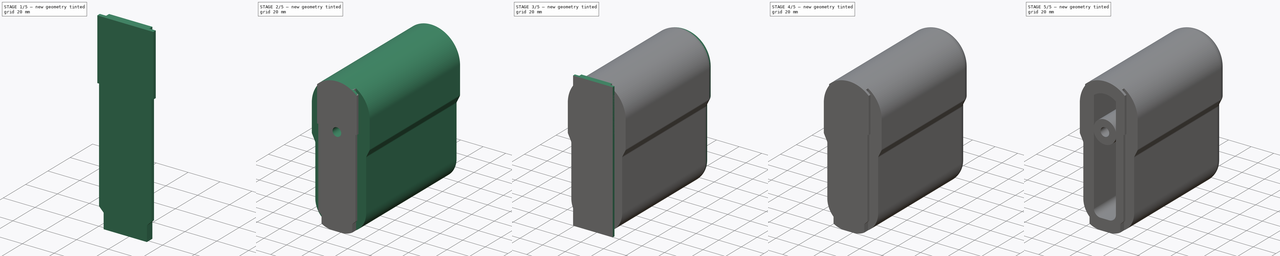
[diagram: build sequence overview — one tinted view per stage of 5, left to right]
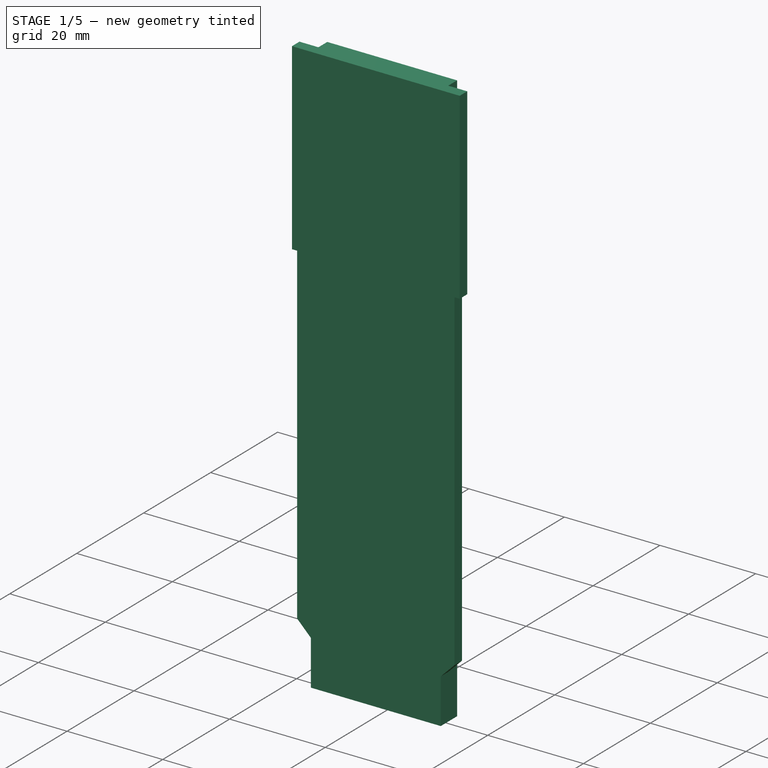
[diagram: stage 1 of 5 — iso view after this stage's code; geometry added in this stage tinted green]
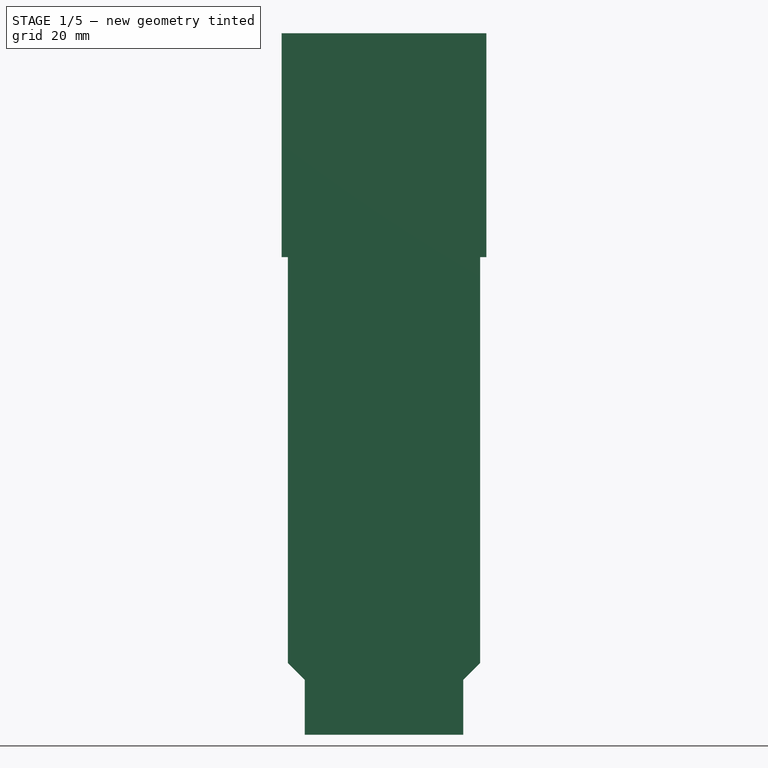
[diagram: stage 1 of 5 — front view after this stage's code; geometry added in this stage tinted green]
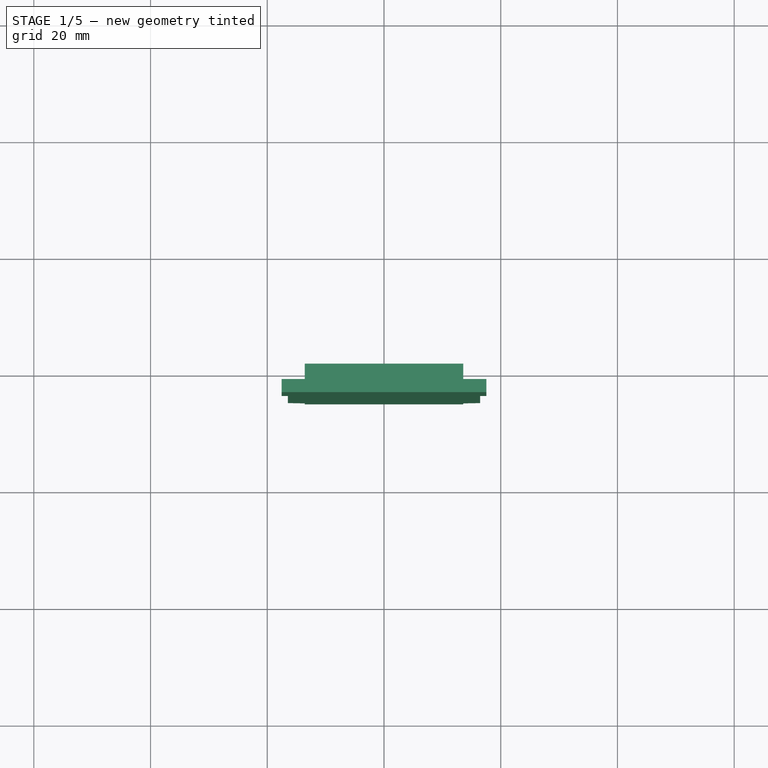
[diagram: stage 1 of 5 — top view after this stage's code; geometry added in this stage tinted green]
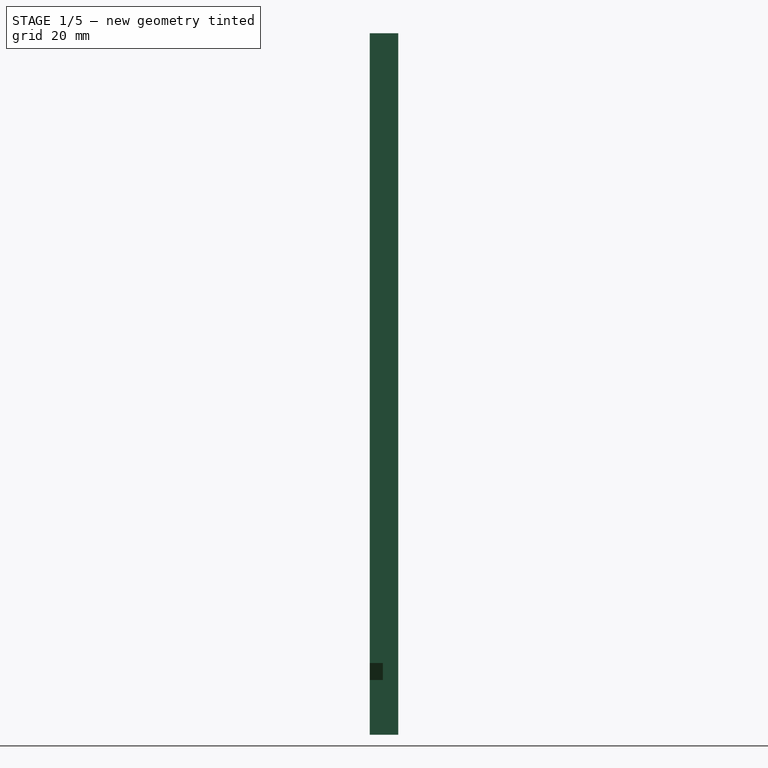
[diagram: stage 1 of 5 — right view after this stage's code; geometry added in this stage tinted green]
FCSTD DOCUMENT  (FreeCAD 0.19R24291 (Git))
Label: SolidButt
License: All rights reserved
LicenseURL: http://en.wikipedia.org/wiki/All_rights_reserved
objects: Sketcher::SketchObject×14, PartDesign::Pocket×8, PartDesign::Pad×6, Spreadsheet::Sheet×5, PartDesign::Fillet×2, PartDesign::Body×2
note: 48 computed .brp shape members not serialized (recipe doc carries the construction recipe); baked Part::Feature solids carry a one-line shape summary decoded from their .brp

FEATURE [PartDesign::Body] Body  label="29InchOAL"
  Group = -> [Sketch,Pad,Sketch001,Pad001,Sketch002,Pocket,Sketch003,Pad002,Sketch004,Pocket001,Sketch022,Pocket010,Fillet,Sketch023,Pocket011]
  Origin = -> Origin
  Tip = -> Pocket011
FEATURE [Spreadsheet::Sheet] Spreadsheet005  label="P90Measurements001"
  cells = A1=ButtDovetail; D1=Overall; G1=ButtPad; I1=Reference Point; J1=Bottom of pad, just at base of dovetail body; L1=SpaceForTelescopingBar; M1(SpaceForTelescopingBar)==0.584"; A2=DovetailHeight; B2(DovetailHeight)==0.192"; D2=ButtOverallHeight; E2(ButtOverallHeight)==4.733"; G2=PadWidestWidth; H2(PadWidestWidth)==2.017"; A3=DovetailBodyWidth; B3(DovetailBodyWidth)==1.093"; D3=PadBCGHoleFromReferencePoint; E3(PadBCGHoleFromReferencePoint)==2.997"; G3=PadThinnestWidth; H3(PadThinnestWidth)==1.772"; A4=DovetailLedgeHeight; B4(DovetailLedgeHeight)==0.1"; D4=PadBCGHoleDiameter; E4(PadBCGHoleDiameter)==0.277"; G4=PadWidestWidthInnerShoulderDistanceFromReferencePoint; H4(PadWidestWidthInnerShoulderDistanceFromReferencePoint)==2.532"; A5=DovetailLedgeWidestWidth; B5(DovetailLedgeWidestWidth)==1.405"; D5=PadBCGHoleDepth; E5(PadBCGHoleDepth)==0.375"; G5=PadWidestWidthOuterShoulderDistanceFromReferencePoint; H5(PadWidestWidthOuterShoulderDistanceFromReferencePoint)==2.785"; A6=DovetailLedgeMiddleWidth; B6(DovetailLedgeMiddleWidth)==1.32"; G6=PadBottomWidth; H6(PadBottomWidth)==0.3"; A7=DovetailMiddleWidthInsideShoulderDistanceFromReferencePoint; B7(DovetailMiddleWidthInsideShoulderDistanceFromReferencePoint)==0.37"; A8=DovetailMiddleWidthOutsideShoulderDistanceFromReferencePoint; B8(DovetailMiddleWidthOutsideShoulderDistanceFromReferencePoint)==0.484"; A9=DovetailBottobBodyBevelDistanceFromReferencePoint; B9(DovetailBottobBodyBevelDistanceFromReferencePoint)==0.154"; A10=DovetailWidestLedgeStartingPointFromReferencePoint; B10(DovetailWidestLedgeStartingPointFromReferencePoint)==3.222"
FEATURE [Sketcher::SketchObject] Sketch024  label="DovetailLedgeSketch001"
  AttachmentOffset = pos=(0,0,4.8768) rot=(0,0,1;0rad)
  FullyConstrained = true
  MapMode = 5
  Placement = pos=(0,-4.8768,-1.1e-15) rot=(1,0,0;1.5708rad)
  Support = -> [XZ_Plane001]
  expr: Constraints[9] = <<P90Measurements001>>.ButtOverallHeight
  expr: Constraints[10] = <<P90Measurements001>>.DovetailLedgeWidestWidth - <<ProjectSettings>>.LooseTolerance * 2
  expr: .AttachmentOffset.Base.z = <<P90Measurements001>>.DovetailHeight
  sketch-geometry (4):
    g0: LineSegment StartX=-17.5435 StartY=120.218 StartZ=0 EndX=17.5435 EndY=120.218 EndZ=0
    g1: LineSegment StartX=17.5435 StartY=120.218 StartZ=0 EndX=17.5435 EndY=0 EndZ=0
    g2: LineSegment StartX=17.5435 StartY=0 StartZ=0 EndX=-17.5435 EndY=0 EndZ=0
    g3: LineSegment StartX=-17.5435 StartY=0 StartZ=0 EndX=-17.5435 EndY=120.218 EndZ=0
  constraints (11):
    c: Coincident(g0,g1)
    c: Coincident(g1,g2)
    c: Coincident(g2,g3)
    c: Coincident(g3,g0)
    c: Horizontal(g0)
    c: Vertical(g1)
    c: Vertical(g3)
    c: PointOnObject(g1,g-1)
    c: Symmetric(g2,g1,g-2)
    c: DistanceY(g1,g1) = 120.218
    c: DistanceX(g0,g0) = 35.087
FEATURE [Sketcher::SketchObject] Sketch025  label="PadBodySketch001"
  FullyConstrained = true
  MapMode = 5
  Placement = pos=(0,0,0) rot=(1,0,0;1.5708rad)
  Support = -> [XZ_Plane001]
  expr: Constraints[20] = <<P90Measurements001>>.ButtOverallHeight
  expr: Constraints[21] = <<P90Measurements001>>.PadWidestWidth
  expr: Constraints[19] = <<P90Measurements001>>.PadThinnestWidth
  expr: Constraints[22] = <<P90Measurements001>>.PadWidestWidthOuterShoulderDistanceFromReferencePoint
  expr: Constraints[27] = <<P90Measurements001>>.PadWidestWidthInnerShoulderDistanceFromReferencePoint
  sketch-geometry (12):
    g0: LineSegment StartX=-22.5044 StartY=0 StartZ=0 EndX=22.5044 EndY=0 EndZ=0
    g1: LineSegment StartX=22.5044 StartY=0 StartZ=0 EndX=22.5044 EndY=63.2152 EndZ=0
    g2: LineSegment StartX=-22.5044 StartY=63.2152 StartZ=0 EndX=-22.5044 EndY=0 EndZ=0
    g3: LineSegment StartX=-25.6159 StartY=120.218 StartZ=0 EndX=25.6159 EndY=120.218 EndZ=0
    g4: LineSegment StartX=25.6159 StartY=120.218 StartZ=0 EndX=25.6159 EndY=70.739 EndZ=0
    g5: LineSegment StartX=-25.6159 StartY=70.739 StartZ=0 EndX=-25.6159 EndY=120.218 EndZ=0
    g6: LineSegment StartX=-25.3621 StartY=69.6414 StartZ=0 EndX=-22.7582 EndY=64.3128 EndZ=0
    g7: LineSegment StartX=25.3621 StartY=69.6414 StartZ=0 EndX=22.7582 EndY=64.3128 EndZ=0
    g8: ArcOfCircle CenterX=-23.1159 CenterY=70.739 CenterZ=0 NormalX=0 NormalY=0 NormalZ=1 AngleXU=0 Radius=2.5 StartAngle=3.14159 EndAngle=3.59612
    g9: ArcOfCircle CenterX=-25.0044 CenterY=63.2152 CenterZ=0 NormalX=0 NormalY=0 NormalZ=1 AngleXU=0 Radius=2.5 StartAngle=2e-16 EndAngle=0.454529
    g10: ArcOfCircle CenterX=23.1159 CenterY=70.739 CenterZ=0 NormalX=0 NormalY=0 NormalZ=1 AngleXU=0 Radius=2.5 StartAngle=5.82866 EndAngle=6.28319
    g11: ArcOfCircle CenterX=25.0044 CenterY=63.2152 CenterZ=0 NormalX=0 NormalY=0 NormalZ=1 AngleXU=0 Radius=2.5 StartAngle=2.68706 EndAngle=3.14159
  constraints (28):
    c: Coincident(g0,g1)
    c: Coincident(g2,g0)
    c: Vertical(g1)
    c: Vertical(g2)
    c: PointOnObject(g0,g-1)
    c: Coincident(g3,g4)
    c: Coincident(g5,g3)
    c: Vertical(g4)
    c: Vertical(g5)
    c: Tangent(g8,g5) = 1.5708
    c: Tangent(g8,g6) = -1.5708
    c: Tangent(g9,g6) = 1.5708
    c: Tangent(g11,g1) = 1.5708
    c: Tangent(g11,g7) = -1.5708
    c: Tangent(g7,g10) = 1.5708
    c: Tangent(g10,g4) = 1.5708
    c: Tangent(g9,g2) = 1.5708
    c: Symmetric(g0,g0,g-2)
    c: Symmetric(g3,g3,g-2)
    c: DistanceX(g0,g0) = 45.0088
    c: DistanceY(g0,g3) = 120.218
    c: DistanceX(g3,g3) = 51.2318
    c: DistanceY(g-1,g8) = 70.739
    c: Symmetric(g7,g6,g-2)
    c: Symmetric(g6,g7,g-2)
    c: Equal(g11,g10)
    c: Diameter(g11) = 5
    c: DistanceY(g6) = 64.3128
FEATURE [Sketcher::SketchObject] Sketch026  label="DovetailBodySketch001"
  FullyConstrained = true
  MapMode = 5
  Placement = pos=(0,0,0) rot=(1,0,0;1.5708rad)
  Support = -> [XZ_Plane001]
  expr: Constraints[9] = <<P90Measurements001>>.ButtOverallHeight
  expr: Constraints[10] = <<P90Measurements001>>.DovetailBodyWidth - <<ProjectSettings>>.LooseTolerance * 2
  sketch-geometry (4):
    g0: LineSegment StartX=-13.5811 StartY=120.218 StartZ=0 EndX=13.5811 EndY=120.218 EndZ=0
    g1: LineSegment StartX=13.5811 StartY=120.218 StartZ=0 EndX=13.5811 EndY=0 EndZ=0
    g2: LineSegment StartX=13.5811 StartY=0 StartZ=0 EndX=-13.5811 EndY=0 EndZ=0
    g3: LineSegment StartX=-13.5811 StartY=0 StartZ=0 EndX=-13.5811 EndY=120.218 EndZ=0
  constraints (11):
    c: Coincident(g0,g1)
    c: Coincident(g1,g2)
    c: Coincident(g2,g3)
    c: Coincident(g3,g0)
    c: Horizontal(g0)
    c: Vertical(g1)
    c: Vertical(g3)
    c: PointOnObject(g1,g-1)
    c: Symmetric(g1,g2,g-2)
    c: DistanceY(g1,g1) = 120.218
    c: DistanceX(g0,g0) = 27.1622
FEATURE [Sketcher::SketchObject] Sketch027  label="DovetailLedgeCutSketch001"
  FullyConstrained = true
  MapMode = 5
  Placement = pos=(0,0,0) rot=(1,0,0;1.5708rad)
  Support = -> [XZ_Plane001]
  expr: Constraints[31] = <<P90Measurements001>>.ButtOverallHeight
  expr: Constraints[37] = <<P90Measurements001>>.DovetailMiddleWidthInsideShoulderDistanceFromReferencePoint
  expr: Constraints[35] = <<P90Measurements001>>.DovetailBodyWidth - <<ProjectSettings>>.LooseTolerance * 2
  expr: Constraints[36] = <<P90Measurements001>>.DovetailLedgeMiddleWidth - <<ProjectSettings>>.LooseTolerance * 2
  expr: Constraints[32] = <<P90Measurements001>>.DovetailLedgeWidestWidth - <<ProjectSettings>>.LooseTolerance * 2
  expr: Constraints[38] = <<P90Measurements001>>.DovetailMiddleWidthOutsideShoulderDistanceFromReferencePoint
  expr: Constraints[39] = <<P90Measurements001>>.DovetailWidestLedgeStartingPointFromReferencePoint
  sketch-geometry (16):
    g0: LineSegment StartX=-27.5435 StartY=130.218 StartZ=0 EndX=27.5435 EndY=130.218 EndZ=0
    g1: LineSegment StartX=27.5435 StartY=130.218 StartZ=0 EndX=27.5435 EndY=-10 EndZ=0
    g2: LineSegment StartX=27.5435 StartY=-10 StartZ=0 EndX=-27.5435 EndY=-10 EndZ=0
    g3: LineSegment StartX=-27.5435 StartY=-10 StartZ=0 EndX=-27.5435 EndY=130.218 EndZ=0
    g4: LineSegment StartX=-13.5811 StartY=0 StartZ=0 EndX=13.5811 EndY=0 EndZ=0
    g5: LineSegment StartX=13.5811 StartY=0 StartZ=0 EndX=13.5811 EndY=9.398 EndZ=0
    g6: LineSegment StartX=13.5811 StartY=9.398 StartZ=0 EndX=16.464 EndY=12.2936 EndZ=0
    g7: LineSegment StartX=16.464 StartY=12.2936 StartZ=0 EndX=16.464 EndY=81.8388 EndZ=0
    g8: LineSegment StartX=16.464 StartY=81.8388 StartZ=0 EndX=17.5435 EndY=81.8388 EndZ=0
    g9: LineSegment StartX=17.5435 StartY=81.8388 StartZ=0 EndX=17.5435 EndY=120.218 EndZ=0
    g10: LineSegment StartX=17.5435 StartY=120.218 StartZ=0 EndX=-17.5435 EndY=120.218 EndZ=0
    g11: LineSegment StartX=-17.5435 StartY=120.218 StartZ=0 EndX=-17.5435 EndY=81.8388 EndZ=0
    g12: LineSegment StartX=-17.5435 StartY=81.8388 StartZ=0 EndX=-16.464 EndY=81.8388 EndZ=0
    g13: LineSegment StartX=-16.464 StartY=81.8388 StartZ=0 EndX=-16.464 EndY=12.2936 EndZ=0
    g14: LineSegment StartX=-16.464 StartY=12.2936 StartZ=0 EndX=-13.5811 EndY=9.398 EndZ=0
    g15: LineSegment StartX=-13.5811 StartY=9.398 StartZ=0 EndX=-13.5811 EndY=0 EndZ=0
  constraints (45):
    c: Coincident(g0,g1)
    c: Coincident(g1,g2)
    c: Coincident(g2,g3)
    c: Coincident(g3,g0)
    c: Horizontal(g0)
    c: Horizontal(g2)
    c: Vertical(g1)
    c: Vertical(g3)
    c: PointOnObject(g4,g-1)
    c: Coincident(g4,g5)
    c: Vertical(g5)
    c: Coincident(g5,g6)
    c: Coincident(g6,g7)
    c: Vertical(g7)
    c: Coincident(g7,g8)
    c: Horizontal(g8)
    c: Coincident(g8,g9)
    c: Vertical(g9)
    c: Coincident(g9,g10)
    c: Coincident(g10,g11)
    c: Vertical(g11)
    c: Coincident(g11,g12)
    c: Horizontal(g12)
    c: Coincident(g12,g13)
    c: Vertical(g13)
    c: Coincident(g13,g14)
    c: Coincident(g14,g15)
    c: Coincident(g15,g4)
    c: Vertical(g15)
    c: Horizontal(g14,g5)
    c: Horizontal(g13,g6)
    c: DistanceY(g4,g9) = 120.218
    c: DistanceX(g10,g10) = 35.087
    c: Symmetric(g10,g9,g-2)
    c: Symmetric(g12,g7,g-2)
    c: DistanceX(g4,g4) = 27.1622
    c: DistanceX(g12,g7) = 32.928
    c: DistanceY(g14) = 9.398
    c: DistanceY(g4,g13) = 12.2936
    c: DistanceY(g-1,g7) = 81.8388
    c: DistanceY(g10,g0) = 10
    c: DistanceX(g0,g10) = 10
    c: DistanceX(g9,g1) = 10
    c: DistanceY(g1,g4) = 10
    c: Symmetric(g4,g4,g-2)
FEATURE [Sketcher::SketchObject] Sketch028  label="PadBevelsCutSketch001"
  FullyConstrained = true
  MapMode = 5
  Placement = pos=(0,0,0) rot=(1,0,0;1.5708rad)
  Support = -> [XZ_Plane001]
  expr: Constraints[27] = <<P90Measurements001>>.ButtOverallHeight
  expr: Constraints[30] = <<P90Measurements001>>.PadThinnestWidth
  expr: Constraints[31] = <<P90Measurements001>>.PadWidestWidthInnerShoulderDistanceFromReferencePoint - 5mm
  expr: Constraints[29] = <<P90Measurements001>>.PadWidestWidth
  expr: Constraints[32] = <<P90Measurements001>>.PadBottomWidth
  sketch-geometry (15):
    g0: LineSegment StartX=-35.6159 StartY=130.218 StartZ=0 EndX=35.6159 EndY=130.218 EndZ=0
    g1: LineSegment StartX=35.6159 StartY=130.218 StartZ=0 EndX=35.6159 EndY=-10 EndZ=0
    g2: LineSegment StartX=35.6159 StartY=-10 StartZ=0 EndX=-35.6159 EndY=-10 EndZ=0
    g3: LineSegment StartX=-35.6159 StartY=-10 StartZ=0 EndX=-35.6159 EndY=130.218 EndZ=0
    g4: ArcOfCircle CenterX=-3.81 CenterY=18.6944 CenterZ=0 NormalX=0 NormalY=0 NormalZ=1 AngleXU=0 Radius=18.6944 StartAngle=3.14159 EndAngle=4.71239
    g5: ArcOfCircle CenterX=3.81 CenterY=18.6944 CenterZ=0 NormalX=0 NormalY=0 NormalZ=1 AngleXU=0 Radius=18.6944 StartAngle=4.71239 EndAngle=6.28319
    g6: ArcOfCircle CenterX=2.5e-15 CenterY=94.6023 CenterZ=0 NormalX=0 NormalY=0 NormalZ=1 AngleXU=0 Radius=25.6159 StartAngle=1.5708 EndAngle=3.14159
    g7: ArcOfCircle CenterX=2.5e-15 CenterY=94.6023 CenterZ=0 NormalX=0 NormalY=0 NormalZ=1 AngleXU=0 Radius=25.6159 StartAngle=0 EndAngle=1.5708
    g8: LineSegment StartX=-25.6159 StartY=94.6023 StartZ=0 EndX=-25.6159 EndY=59.3128 EndZ=0
    g9: LineSegment StartX=-25.6159 StartY=59.3128 StartZ=0 EndX=-22.5044 EndY=59.3128 EndZ=0
    g10: LineSegment StartX=-22.5044 StartY=59.3128 StartZ=0 EndX=-22.5044 EndY=18.6944 EndZ=0
    g11: LineSegment StartX=-3.81 StartY=0 StartZ=0 EndX=3.81 EndY=0 EndZ=0
    g12: LineSegment StartX=22.5044 StartY=18.6944 StartZ=0 EndX=22.5044 EndY=59.3128 EndZ=0
    g13: LineSegment StartX=22.5044 StartY=59.3128 StartZ=0 EndX=25.6159 EndY=59.3128 EndZ=0
    g14: LineSegment StartX=25.6159 StartY=59.3128 StartZ=0 EndX=25.6159 EndY=94.6023 EndZ=0
  constraints (40):
    c: Coincident(g0,g1)
    c: Coincident(g1,g2)
    c: Coincident(g2,g3)
    c: Coincident(g3,g0)
    c: Horizontal(g0)
    c: Vertical(g1)
    c: Vertical(g3)
    c: Symmetric(g2,g1,g-2)
    c: PointOnObject(g4,g-1)
    c: PointOnObject(g5,g-1)
    c: Vertical(g8)
    c: Coincident(g9,g8)
    c: Vertical(g10)
    c: Vertical(g12)
    c: Coincident(g13,g12)
    c: Vertical(g14)
    c: Coincident(g13,g14)
    c: Horizontal(g13)
    c: Tangent(g6,g8) = -1.5708
    c: Tangent(g7,g14) = -1.5708
    c: Tangent(g10,g4) = -1.5708
    c: Tangent(g11,g4) = -1.5708
    c: Tangent(g11,g5) = -1.5708
    c: Tangent(g12,g5) = -1.5708
    c: Symmetric(g12,g10,g-2)
    c: Symmetric(g8,g13,g-2)
    c: Coincident(g10,g9)
    c: DistanceY(g-1,g7) = 120.218
    c: Equal(g5,g4)
    c: DistanceX(g6,g7) = 51.2318
    c: DistanceX(g9,g12) = 45.0088
    c: DistanceY(g-1,g12) = 59.3128
    c: DistanceX(g11,g11) = 7.62
    c: PointOnObject(g6,g-2)
    c: Tangent(g6,g7) = -1.5708
    c: Equal(g8,g14)
    c: DistanceY(g2,g-1) = 10
    c: DistanceY(g6,g0) = 10
    c: DistanceX(g7,g1) = 10
    c: DistanceY(g-1,g6) = 94.6023  'TopRoundSectionCenterHeight'
FEATURE [PartDesign::Pad] Pad003  label="DovetailBodyPad001"
  Direction = (1,1,1)
  Length = 4.8768
  Length2 = 100
  Placement = pos=(0,0,0) rot=(1,0,0;1.5708rad)
  Profile = -> Sketch026
  Type = 0
  expr: Length = <<P90Measurements001>>.DovetailHeight
FEATURE [PartDesign::Pad] Pad004  label="DovetailLedgePad001"
  BaseFeature = -> Pad003
  Direction = (1,1,1)
  Length = 2.24
  Length2 = 100
  Placement = pos=(0,0,0) rot=(1,0,0;1.5708rad)
  Profile = -> Sketch024
  Refine = true
  Reversed = true
  Type = 0
  expr: Length = <<P90Measurements001>>.DovetailLedgeHeight - <<ProjectSettings>>.LooseTolerance
FEATURE [PartDesign::Pocket] Pocket012  label="DovetailLedgeCutPocket001"
  BaseFeature = -> Pad004
  Length = 5
  Length2 = 100
  Placement = pos=(0,0,0) rot=(1,0,0;1.5708rad)
  Profile = -> Sketch027
  Reversed = true
  Type = 1
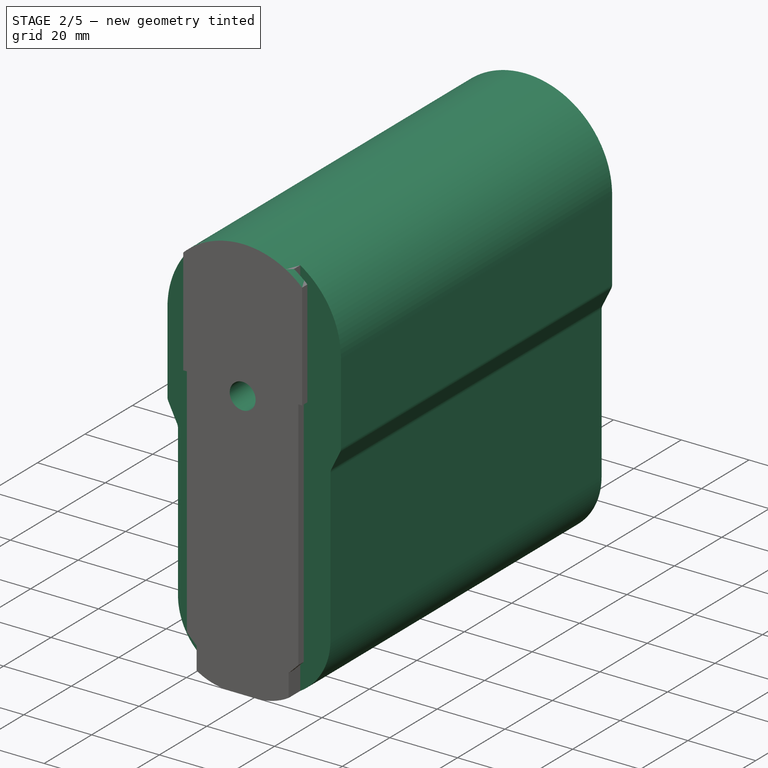
[diagram: stage 2 of 5 — iso view after this stage's code; geometry added in this stage tinted green]
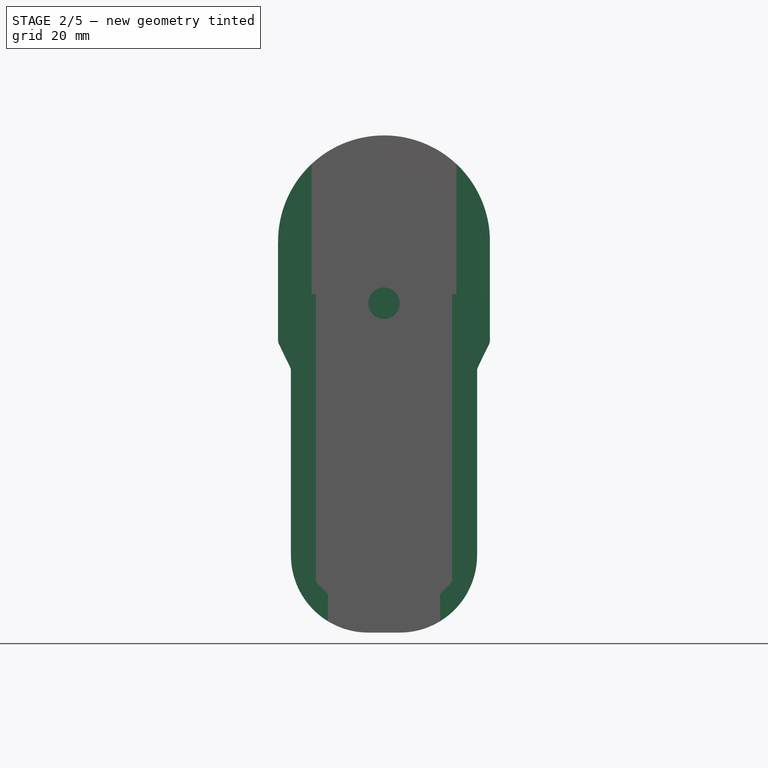
[diagram: stage 2 of 5 — front view after this stage's code; geometry added in this stage tinted green]
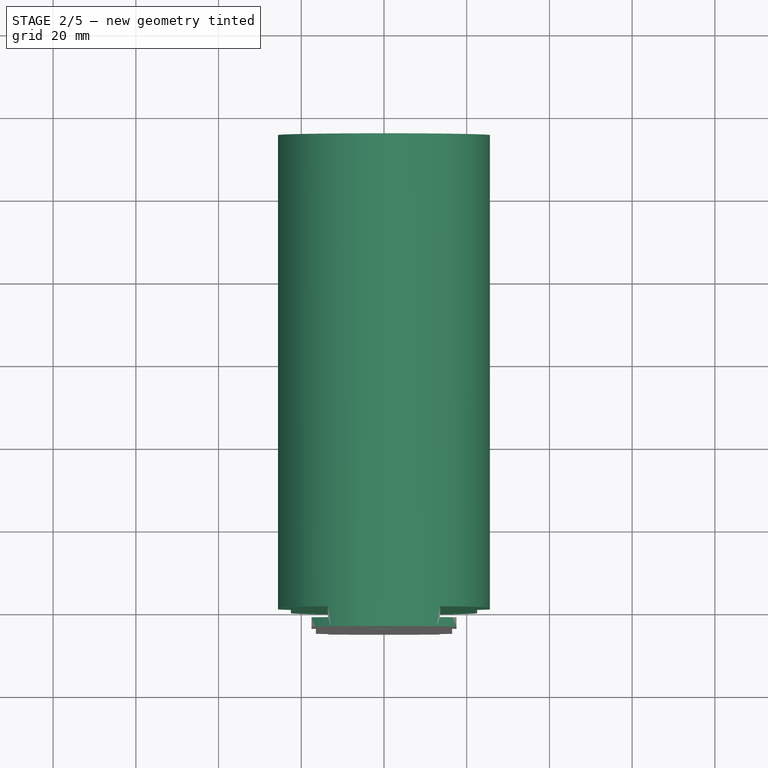
[diagram: stage 2 of 5 — top view after this stage's code; geometry added in this stage tinted green]
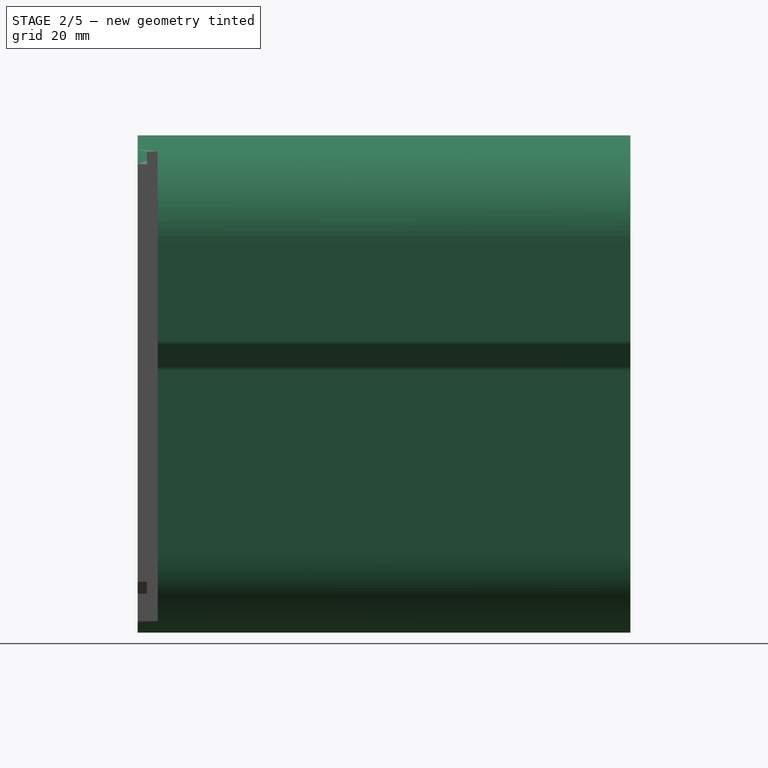
[diagram: stage 2 of 5 — right view after this stage's code; geometry added in this stage tinted green]
FEATURE [PartDesign::Pad] Pad005  label="PadBodyPad001"
  BaseFeature = -> Pocket012
  Direction = (1,1,1)
  Length = 114.3
  Length2 = 100
  Placement = pos=(0,0,0) rot=(1,0,0;1.5708rad)
  Profile = -> Sketch025
  Reversed = true
  Type = 0
  expr: Length = 4.5"
FEATURE [PartDesign::Pocket] Pocket013  label="PadBevelsCutPocket001"
  BaseFeature = -> Pad005
  Length = 5
  Length2 = 100
  Midplane = true
  Placement = pos=(0,0,0) rot=(1,0,0;1.5708rad)
  Profile = -> Sketch028
  Type = 1
FEATURE [Sketcher::SketchObject] Sketch029  label="BCGHoleSketch001"
  AttachmentOffset = pos=(0,0,4.8768) rot=(0,0,1;0rad)
  FullyConstrained = true
  MapMode = 5
  Placement = pos=(0,-4.8768,-1.1e-15) rot=(1,0,0;1.5708rad)
  Support = -> [XZ_Plane001]
  expr: .AttachmentOffset.Base.z = <<P90Measurements001>>.DovetailHeight
  expr: Constraints[2] = <<P90Measurements001>>.PadBCGHoleDiameter + <<ProjectSettings>>.LooseTolerance * 2
  expr: Constraints[1] = <<P90Measurements001>>.PadBCGHoleFromReferencePoint + <<P90Measurements001>>.PadBCGHoleDiameter / 2
  sketch-geometry (1):
    g0: Circle CenterX=0 CenterY=79.6417 CenterZ=0 NormalX=0 NormalY=0 NormalZ=1 AngleXU=0 Radius=3.8179
  constraints (3):
    c: PointOnObject(g0,g-2)
    c: DistanceY(g-1,g0) = 79.6417
    c: Diameter(g0) = 7.6358
FEATURE [PartDesign::Pocket] Pocket014  label="BCGHolePocket001"
  BaseFeature = -> Pocket013
  Length = 9.525
  Length2 = 100
  Placement = pos=(0,0,0) rot=(1,0,0;1.5708rad)
  Profile = -> Sketch029
  Refine = true
  Type = 0
  expr: Length = <<P90Measurements001>>.PadBCGHoleDepth
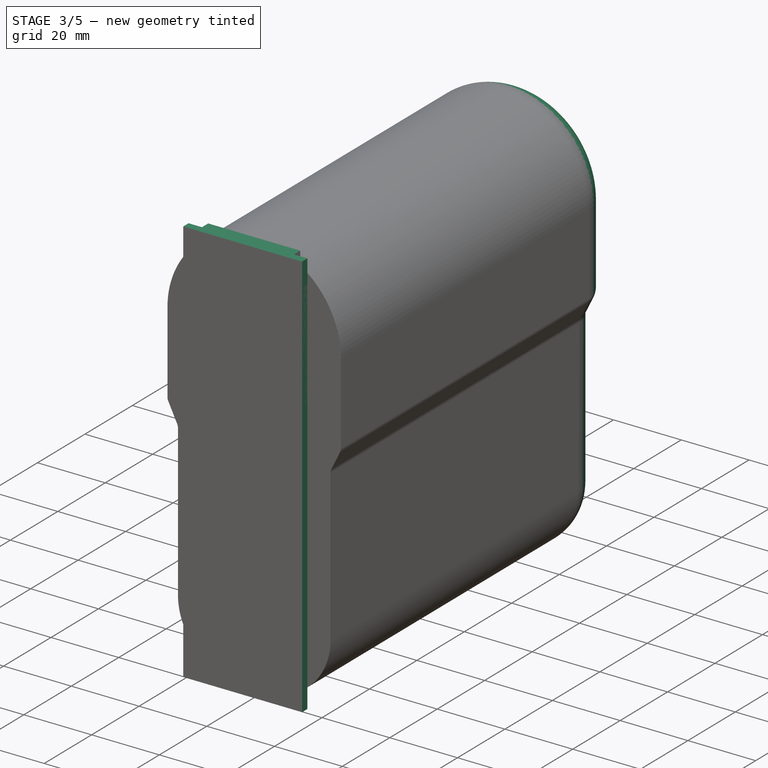
[diagram: stage 3 of 5 — iso view after this stage's code; geometry added in this stage tinted green]
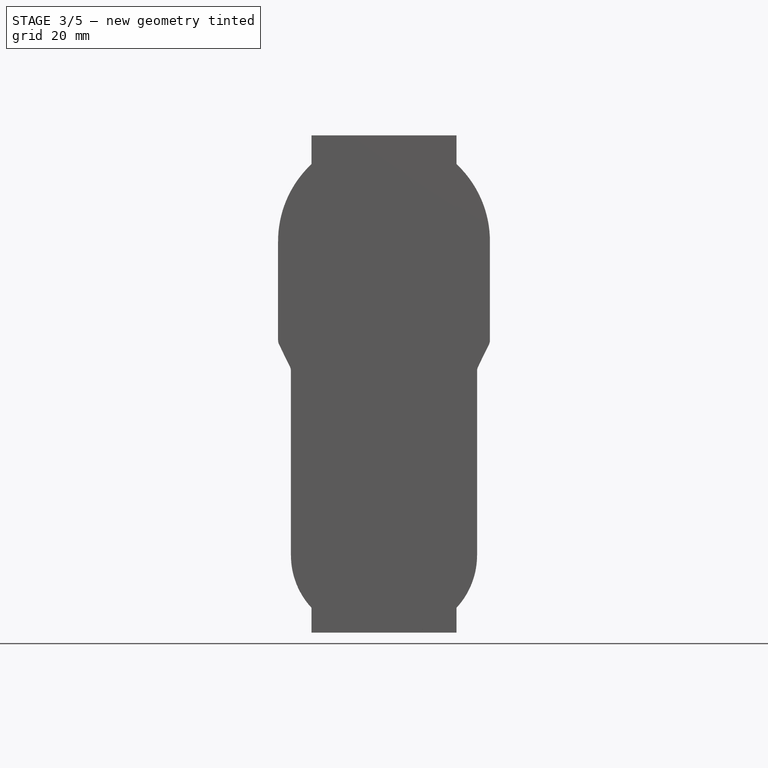
[diagram: stage 3 of 5 — front view after this stage's code; geometry added in this stage tinted green]
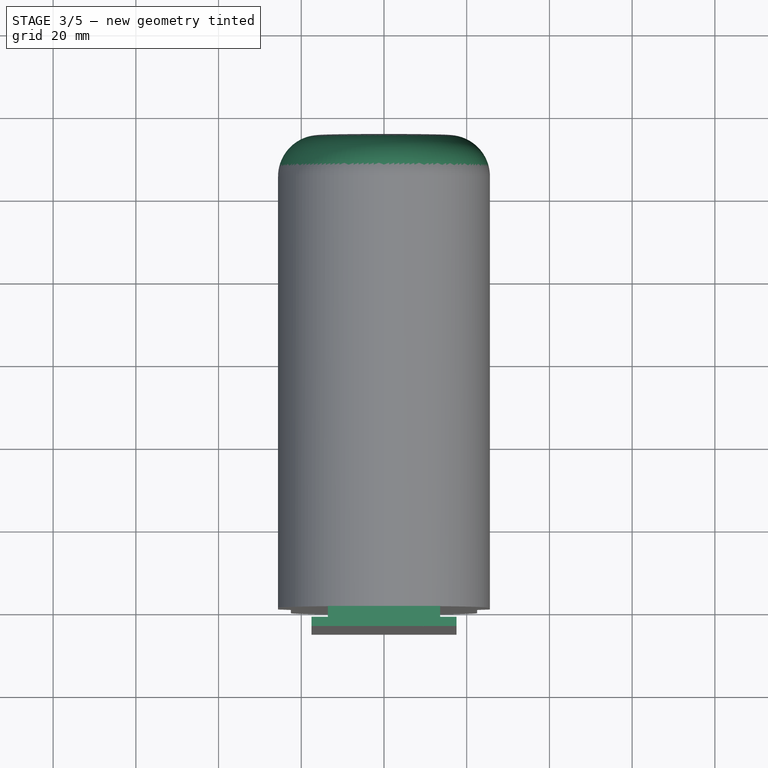
[diagram: stage 3 of 5 — top view after this stage's code; geometry added in this stage tinted green]
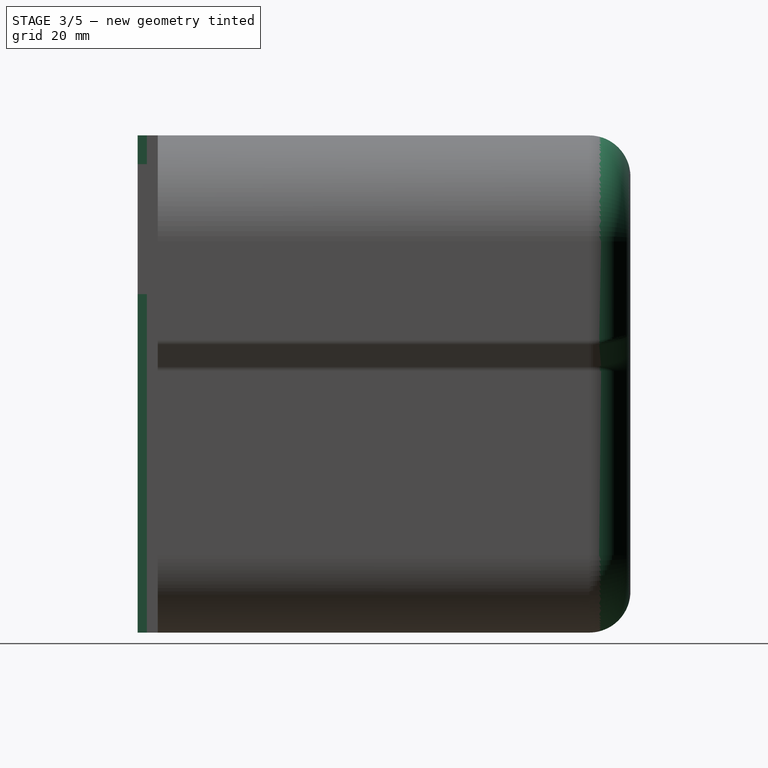
[diagram: stage 3 of 5 — right view after this stage's code; geometry added in this stage tinted green]
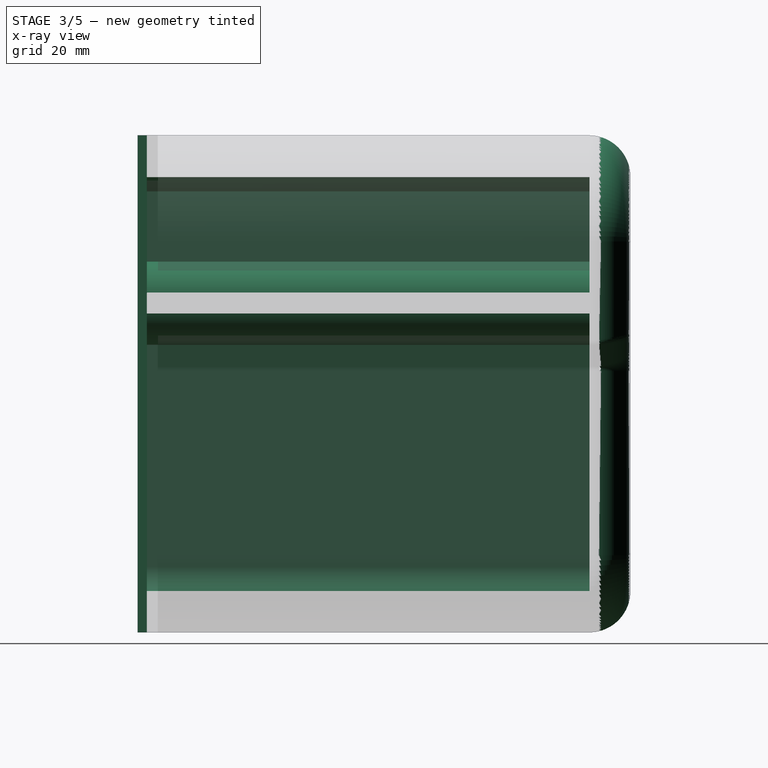
[diagram: stage 3 of 5 — x-ray composite at the right view; earlier geometry ghosted, this stage's added geometry solid]
FEATURE [Spreadsheet::Sheet] Spreadsheet  label="P90Measurements"
  cells = A1=ButtDovetail; D1=Overall; G1=ButtPad; I1=Reference Point; J1=Bottom of pad, just at base of dovetail body; L1=SpaceForTelescopingBar; M1(SpaceForTelescopingBar)==0.584"; A2=DovetailHeight; B2(DovetailHeight)==0.192"; D2=ButtOverallHeight; E2(ButtOverallHeight)==4.733"; G2=PadWidestWidth; H2(PadWidestWidth)==2.017"; A3=DovetailBodyWidth; B3(DovetailBodyWidth)==1.093"; D3=PadBCGHoleFromReferencePoint; E3(PadBCGHoleFromReferencePoint)==2.997"; G3=PadThinnestWidth; H3(PadThinnestWidth)==1.772"; A4=DovetailLedgeHeight; B4(DovetailLedgeHeight)==0.1"; D4=PadBCGHoleDiameter; E4(PadBCGHoleDiameter)==0.277"; G4=PadWidestWidthInnerShoulderDistanceFromReferencePoint; H4(PadWidestWidthInnerShoulderDistanceFromReferencePoint)==2.532"; A5=DovetailLedgeWidestWidth; B5(DovetailLedgeWidestWidth)==1.405"; D5=PadBCGHoleDepth; E5(PadBCGHoleDepth)==0.375"; G5=PadWidestWidthOuterShoulderDistanceFromReferencePoint; H5(PadWidestWidthOuterShoulderDistanceFromReferencePoint)==2.785"; A6=DovetailLedgeMiddleWidth; B6(DovetailLedgeMiddleWidth)==1.32"; G6=PadBottomWidth; H6(PadBottomWidth)==0.3"; A7=DovetailMiddleWidthInsideShoulderDistanceFromReferencePoint; B7(DovetailMiddleWidthInsideShoulderDistanceFromReferencePoint)==0.37"; A8=DovetailMiddleWidthOutsideShoulderDistanceFromReferencePoint; B8(DovetailMiddleWidthOutsideShoulderDistanceFromReferencePoint)==0.484"; A9=DovetailBottobBodyBevelDistanceFromReferencePoint; B9(DovetailBottobBodyBevelDistanceFromReferencePoint)==0.154"; A10=DovetailWidestLedgeStartingPointFromReferencePoint; B10(DovetailWidestLedgeStartingPointFromReferencePoint)==3.222"
FEATURE [Spreadsheet::Sheet] Spreadsheet001  label="ProjectSettings"
  cells = A1=Tolerance; A2=LooseTolerance; B2(LooseTolerance)==0.3mm; A3=TightTolerance; B3(TightTolerance)==0.2mm; A4=WallThickness; B4(WallThickness)==5mm
FEATURE [Sketcher::SketchObject] Sketch  label="DovetailBodySketch"
  FullyConstrained = true
  MapMode = 5
  Placement = pos=(0,0,0) rot=(1,0,0;1.5708rad)
  Support = -> [XZ_Plane]
  expr: Constraints[10] = <<P90Measurements>>.DovetailBodyWidth - <<ProjectSettings>>.LooseTolerance * 2
  expr: Constraints[9] = <<P90Measurements>>.ButtOverallHeight
  sketch-geometry (4):
    g0: LineSegment StartX=-13.5811 StartY=120.218 StartZ=0 EndX=13.5811 EndY=120.218 EndZ=0
    g1: LineSegment StartX=13.5811 StartY=120.218 StartZ=0 EndX=13.5811 EndY=0 EndZ=0
    g2: LineSegment StartX=13.5811 StartY=0 StartZ=0 EndX=-13.5811 EndY=0 EndZ=0
    g3: LineSegment StartX=-13.5811 StartY=0 StartZ=0 EndX=-13.5811 EndY=120.218 EndZ=0
  constraints (11):
    c: Coincident(g0,g1)
    c: Coincident(g1,g2)
    c: Coincident(g2,g3)
    c: Coincident(g3,g0)
    c: Horizontal(g0)
    c: Vertical(g1)
    c: Vertical(g3)
    c: PointOnObject(g1,g-1)
    c: Symmetric(g1,g2,g-2)
    c: DistanceY(g1,g1) = 120.218
    c: DistanceX(g0,g0) = 27.1622
FEATURE [PartDesign::Pad] Pad  label="DovetailBodyPad"
  Direction = (1,1,1)
  Length = 4.8768
  Length2 = 100
  Placement = pos=(0,0,0) rot=(1,0,0;1.5708rad)
  Profile = -> Sketch
  Type = 0
  expr: Length = <<P90Measurements>>.DovetailHeight
FEATURE [Sketcher::SketchObject] Sketch001  label="DovetailLedgeSketch"
  AttachmentOffset = pos=(0,0,4.8768) rot=(0,0,1;0rad)
  FullyConstrained = true
  MapMode = 5
  Placement = pos=(0,-4.8768,-1.1e-15) rot=(1,0,0;1.5708rad)
  Support = -> [XZ_Plane]
  expr: .AttachmentOffset.Base.z = <<P90Measurements>>.DovetailHeight
  expr: Constraints[10] = <<P90Measurements>>.DovetailLedgeWidestWidth - <<ProjectSettings>>.LooseTolerance * 2
  expr: Constraints[9] = <<P90Measurements>>.ButtOverallHeight
  sketch-geometry (4):
    g0: LineSegment StartX=-17.5435 StartY=120.218 StartZ=0 EndX=17.5435 EndY=120.218 EndZ=0
    g1: LineSegment StartX=17.5435 StartY=120.218 StartZ=0 EndX=17.5435 EndY=0 EndZ=0
    g2: LineSegment StartX=17.5435 StartY=0 StartZ=0 EndX=-17.5435 EndY=0 EndZ=0
    g3: LineSegment StartX=-17.5435 StartY=0 StartZ=0 EndX=-17.5435 EndY=120.218 EndZ=0
  constraints (11):
    c: Coincident(g0,g1)
    c: Coincident(g1,g2)
    c: Coincident(g2,g3)
    c: Coincident(g3,g0)
    c: Horizontal(g0)
    c: Vertical(g1)
    c: Vertical(g3)
    c: PointOnObject(g1,g-1)
    c: Symmetric(g2,g1,g-2)
    c: DistanceY(g1,g1) = 120.218
    c: DistanceX(g0,g0) = 35.087
FEATURE [PartDesign::Pad] Pad001  label="DovetailLedgePad"
  BaseFeature = -> Pad
  Direction = (1,1,1)
  Length = 2.24
  Length2 = 100
  Placement = pos=(0,0,0) rot=(1,0,0;1.5708rad)
  Profile = -> Sketch001
  Refine = true
  Reversed = true
  Type = 0
  expr: Length = <<P90Measurements>>.DovetailLedgeHeight - <<ProjectSettings>>.LooseTolerance
FEATURE [PartDesign::Fillet] Fillet001
  Base = -> Pocket014 [Face5]
  BaseFeature = -> Pocket014
  Placement = pos=(0,0,0) rot=(1,0,0;1.5708rad)
  Radius = 10
  SupportTransform = false
FEATURE [Sketcher::SketchObject] Sketch030
  FullyConstrained = false
  MapMode = 5
  Placement = pos=(0,-4.8768,0) rot=(1,0,0;1.5708rad)
  Support = -> [Fillet001]
  expr: Constraints[28] = <<PadBevelsCutSketch001>>.Constraints.TopRoundSectionCenterHeight
  expr: Constraints[26] = <<P90Measurements001>>.PadBCGHoleDiameter + <<ProjectSettings>>.LooseTolerance * 2 + <<ProjectSettings>>.WallThickness * 2.5
  expr: Constraints[24] = <<P90Measurements001>>.PadBCGHoleFromReferencePoint + <<P90Measurements001>>.PadBCGHoleDiameter / 2
  expr: Constraints[27] = <<ProjectSettings>>.WallThickness
  expr: Constraints[22] = <<P90Measurements001>>.PadBottomWidth
  sketch-geometry (10):
    g0: ArcOfCircle CenterX=-3.81 CenterY=15.9426 CenterZ=0 NormalX=0 NormalY=0 NormalZ=1 AngleXU=0 Radius=5.94257 StartAngle=3.14159 EndAngle=4.71239
    g1: ArcOfCircle CenterX=3.81 CenterY=15.9426 CenterZ=0 NormalX=0 NormalY=0 NormalZ=1 AngleXU=0 Radius=5.94257 StartAngle=4.71239 EndAngle=6.28319
    g2: LineSegment StartX=-3.81 StartY=10 StartZ=0 EndX=3.81 EndY=10 EndZ=0
    g3: LineSegment StartX=-9.75257 StartY=77.1417 StartZ=0 EndX=-9.75257 EndY=15.9426 EndZ=0
    g4: LineSegment StartX=9.75257 StartY=15.9426 StartZ=0 EndX=9.75257 EndY=77.1417 EndZ=0
    g5: ArcOfCircle CenterX=0 CenterY=94.6023 CenterZ=0 NormalX=0 NormalY=0 NormalZ=1 AngleXU=0 Radius=15.5319 StartAngle=0.891936 EndAngle=2.24966
    g6: LineSegment StartX=-9.75257 StartY=106.691 StartZ=0 EndX=-9.75257 EndY=82.1417 EndZ=0
    g7: LineSegment StartX=9.75257 StartY=82.1417 StartZ=0 EndX=9.75257 EndY=106.691 EndZ=0
    g8: ArcOfCircle CenterX=0 CenterY=79.6417 CenterZ=0 NormalX=0 NormalY=0 NormalZ=1 AngleXU=0 Radius=10.0679 StartAngle=0.250939 EndAngle=2.89065
    g9: ArcOfCircle CenterX=0 CenterY=79.6417 CenterZ=0 NormalX=0 NormalY=0 NormalZ=1 AngleXU=0 Radius=10.0679 StartAngle=3.39253 EndAngle=6.03225
  constraints (29):
    c: Horizontal(g2)
    c: Tangent(g2,g0) = -1.5708
    c: Tangent(g4,g1) = -1.5708
    c: Tangent(g2,g1) = -1.5708
    c: Tangent(g3,g0) = -1.5708
    c: Vertical(g4)
    c: Vertical(g3)
    c: Equal(g1,g0)
    c: Coincident(g7,g5)
    c: Vertical(g7)
    c: Vertical(g6)
    c: Coincident(g5,g6)
    c: PointOnObject(g5,g-2)
    c: Vertical(g3,g6)
    c: PointOnObject(g8,g-2)
    c: Coincident(g8,g6)
    c: Coincident(g8,g7)
    c: Coincident(g9,g3)
    c: Coincident(g9,g4)
    c: Coincident(g8,g9)
    c: Vertical(g4,g7)
    c: Horizontal(g5,g5)
    c: DistanceX(g2,g2) = 7.62
    c: DistanceY(g-1,g1) = 10
    c: DistanceY(g-1,g8) = 79.6417
    c: Equal(g9,g8)
    c: Diameter(g9) = 20.1358
    c: DistanceY(g3,g6) = 5
    c: DistanceY(g-1,g5) = 94.6023
FEATURE [PartDesign::Pocket] Pocket015
  BaseFeature = -> Fillet001
  Length = 109.3
  Length2 = 100
  Placement = pos=(0,0,0) rot=(1,0,0;1.5708rad)
  Profile = -> Sketch030
  Type = 0
  expr: Length = <<PadBodyPad001>>.Length - <<ProjectSettings>>.WallThickness
FEATURE [PartDesign::Body] Body001  label="30InchOAL"
  Group = -> [Sketch026,Pad003,Sketch024,Pad004,Sketch027,Pocket012,Sketch025,Pad005,Sketch028,Pocket013,Sketch029,Pocket014,Fillet001,Sketch030,Pocket015]
  Origin = -> Origin001
  Tip = -> Pocket015
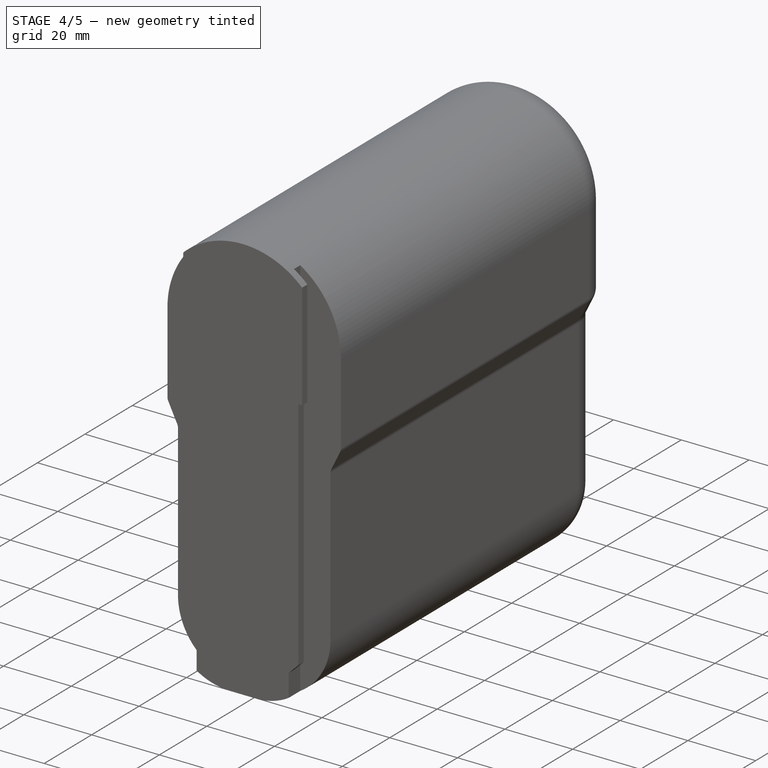
[diagram: stage 4 of 5 — iso view after this stage's code; geometry added in this stage tinted green]
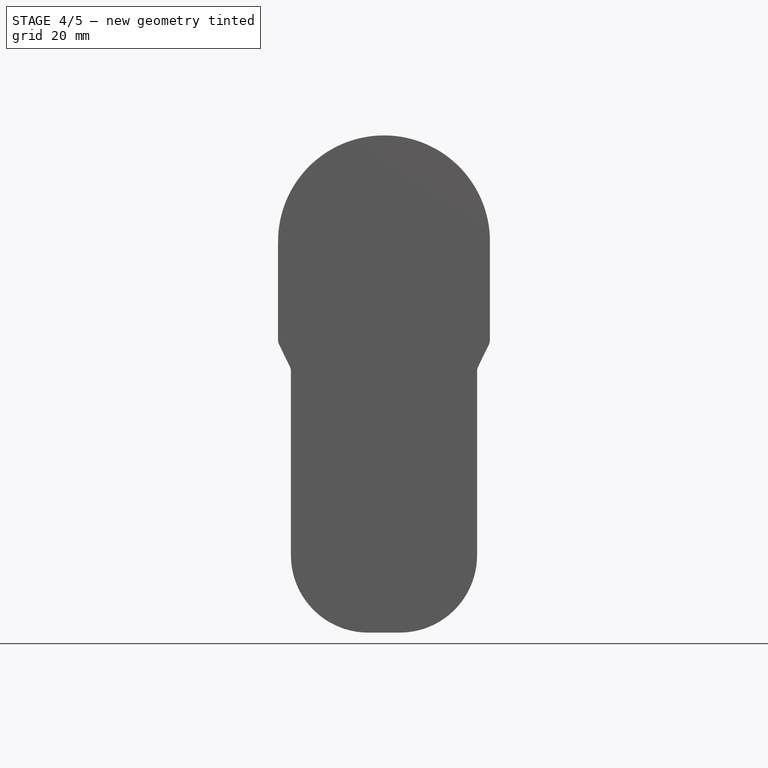
[diagram: stage 4 of 5 — front view after this stage's code; geometry added in this stage tinted green]
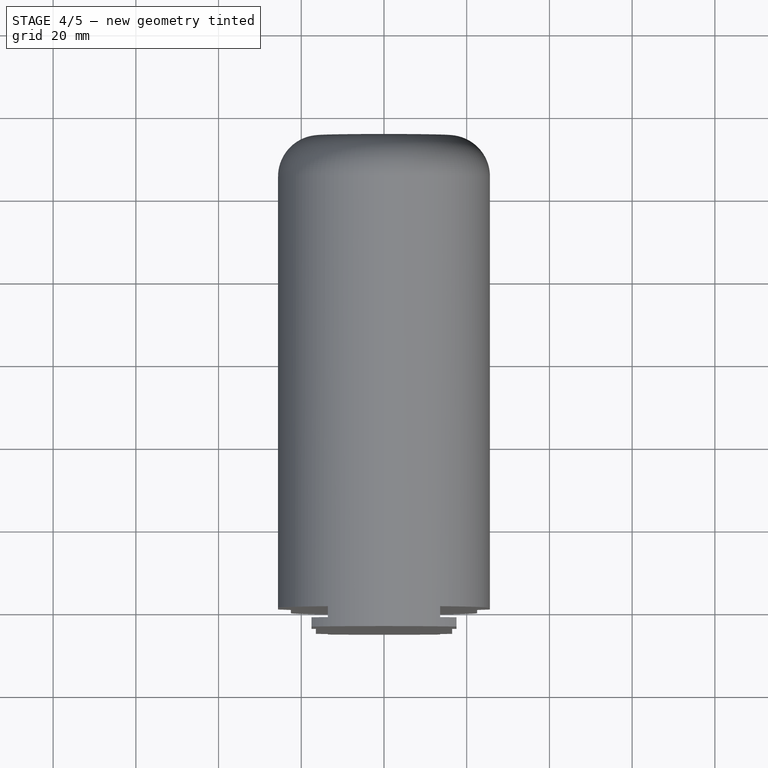
[diagram: stage 4 of 5 — top view after this stage's code; geometry added in this stage tinted green]
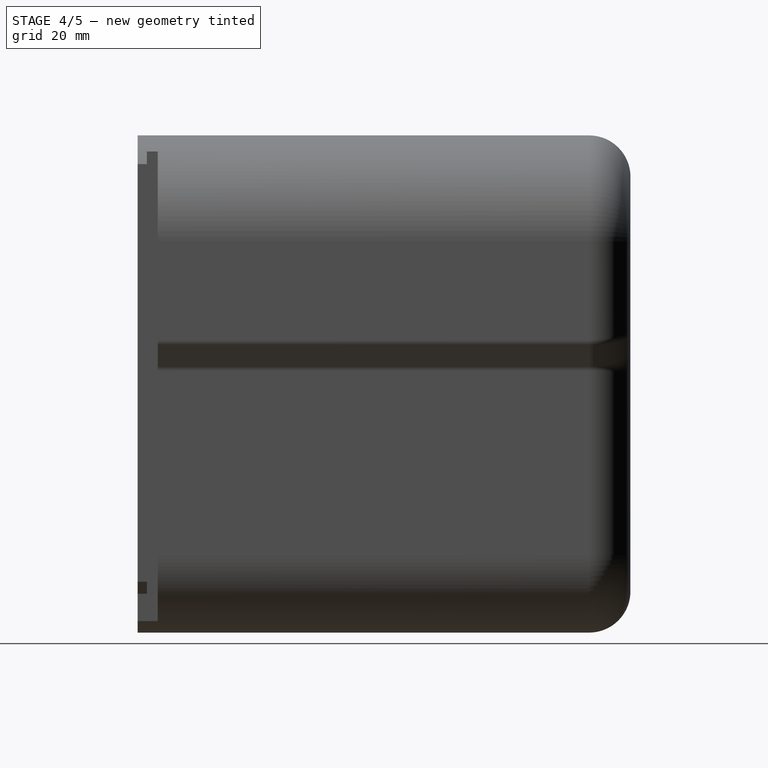
[diagram: stage 4 of 5 — right view after this stage's code; geometry added in this stage tinted green]
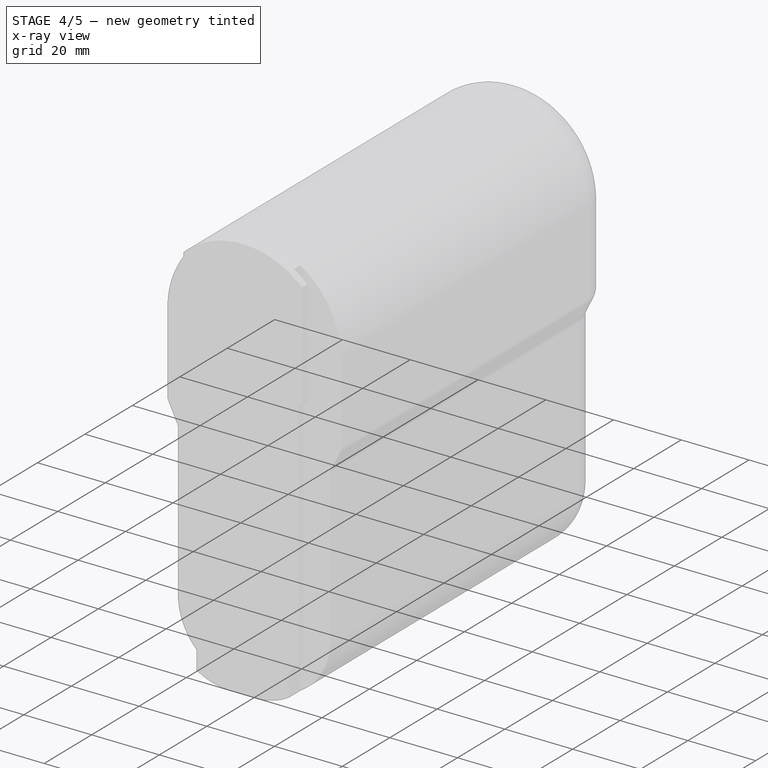
[diagram: stage 4 of 5 — x-ray composite at the iso view; earlier geometry ghosted, this stage's added geometry solid]
FEATURE [Sketcher::SketchObject] Sketch002  label="DovetailLedgeCutSketch"
  FullyConstrained = true
  MapMode = 5
  Placement = pos=(0,0,0) rot=(1,0,0;1.5708rad)
  Support = -> [XZ_Plane]
  expr: Constraints[39] = <<P90Measurements>>.DovetailWidestLedgeStartingPointFromReferencePoint
  expr: Constraints[38] = <<P90Measurements>>.DovetailMiddleWidthOutsideShoulderDistanceFromReferencePoint
  expr: Constraints[32] = <<P90Measurements>>.DovetailLedgeWidestWidth - <<ProjectSettings>>.LooseTolerance * 2
  expr: Constraints[36] = <<P90Measurements>>.DovetailLedgeMiddleWidth - <<ProjectSettings>>.LooseTolerance * 2
  expr: Constraints[35] = <<P90Measurements>>.DovetailBodyWidth - <<ProjectSettings>>.LooseTolerance * 2
  expr: Constraints[37] = <<P90Measurements>>.DovetailMiddleWidthInsideShoulderDistanceFromReferencePoint
  expr: Constraints[31] = <<P90Measurements>>.ButtOverallHeight
  sketch-geometry (16):
    g0: LineSegment StartX=-27.5435 StartY=130.218 StartZ=0 EndX=27.5435 EndY=130.218 EndZ=0
    g1: LineSegment StartX=27.5435 StartY=130.218 StartZ=0 EndX=27.5435 EndY=-10 EndZ=0
    g2: LineSegment StartX=27.5435 StartY=-10 StartZ=0 EndX=-27.5435 EndY=-10 EndZ=0
    g3: LineSegment StartX=-27.5435 StartY=-10 StartZ=0 EndX=-27.5435 EndY=130.218 EndZ=0
    g4: LineSegment StartX=-13.5811 StartY=0 StartZ=0 EndX=13.5811 EndY=0 EndZ=0
    g5: LineSegment StartX=13.5811 StartY=0 StartZ=0 EndX=13.5811 EndY=9.398 EndZ=0
    g6: LineSegment StartX=13.5811 StartY=9.398 StartZ=0 EndX=16.464 EndY=12.2936 EndZ=0
    g7: LineSegment StartX=16.464 StartY=12.2936 StartZ=0 EndX=16.464 EndY=81.8388 EndZ=0
    g8: LineSegment StartX=16.464 StartY=81.8388 StartZ=0 EndX=17.5435 EndY=81.8388 EndZ=0
    g9: LineSegment StartX=17.5435 StartY=81.8388 StartZ=0 EndX=17.5435 EndY=120.218 EndZ=0
    g10: LineSegment StartX=17.5435 StartY=120.218 StartZ=0 EndX=-17.5435 EndY=120.218 EndZ=0
    g11: LineSegment StartX=-17.5435 StartY=120.218 StartZ=0 EndX=-17.5435 EndY=81.8388 EndZ=0
    g12: LineSegment StartX=-17.5435 StartY=81.8388 StartZ=0 EndX=-16.464 EndY=81.8388 EndZ=0
    g13: LineSegment StartX=-16.464 StartY=81.8388 StartZ=0 EndX=-16.464 EndY=12.2936 EndZ=0
    g14: LineSegment StartX=-16.464 StartY=12.2936 StartZ=0 EndX=-13.5811 EndY=9.398 EndZ=0
    g15: LineSegment StartX=-13.5811 StartY=9.398 StartZ=0 EndX=-13.5811 EndY=0 EndZ=0
  constraints (45):
    c: Coincident(g0,g1)
    c: Coincident(g1,g2)
    c: Coincident(g2,g3)
    c: Coincident(g3,g0)
    c: Horizontal(g0)
    c: Horizontal(g2)
    c: Vertical(g1)
    c: Vertical(g3)
    c: PointOnObject(g4,g-1)
    c: Coincident(g4,g5)
    c: Vertical(g5)
    c: Coincident(g5,g6)
    c: Coincident(g6,g7)
    c: Vertical(g7)
    c: Coincident(g7,g8)
    c: Horizontal(g8)
    c: Coincident(g8,g9)
    c: Vertical(g9)
    c: Coincident(g9,g10)
    c: Coincident(g10,g11)
    c: Vertical(g11)
    c: Coincident(g11,g12)
    c: Horizontal(g12)
    c: Coincident(g12,g13)
    c: Vertical(g13)
    c: Coincident(g13,g14)
    c: Coincident(g14,g15)
    c: Coincident(g15,g4)
    c: Vertical(g15)
    c: Horizontal(g14,g5)
    c: Horizontal(g13,g6)
    c: DistanceY(g4,g9) = 120.218
    c: DistanceX(g10,g10) = 35.087
    c: Symmetric(g10,g9,g-2)
    c: Symmetric(g12,g7,g-2)
    c: DistanceX(g4,g4) = 27.1622
    c: DistanceX(g12,g7) = 32.928
    c: DistanceY(g14) = 9.398
    c: DistanceY(g4,g13) = 12.2936
    c: DistanceY(g-1,g7) = 81.8388
    c: DistanceY(g10,g0) = 10
    c: DistanceX(g0,g10) = 10
    c: DistanceX(g9,g1) = 10
    c: DistanceY(g1,g4) = 10
    c: Symmetric(g4,g4,g-2)
FEATURE [PartDesign::Pocket] Pocket  label="DovetailLedgeCutPocket"
  BaseFeature = -> Pad001
  Length = 5
  Length2 = 100
  Placement = pos=(0,0,0) rot=(1,0,0;1.5708rad)
  Profile = -> Sketch002
  Reversed = true
  Type = 1
FEATURE [Sketcher::SketchObject] Sketch003  label="PadBodySketch"
  FullyConstrained = true
  MapMode = 5
  Placement = pos=(0,0,0) rot=(1,0,0;1.5708rad)
  Support = -> [XZ_Plane]
  expr: Constraints[27] = <<P90Measurements>>.PadWidestWidthInnerShoulderDistanceFromReferencePoint
  expr: Constraints[22] = <<P90Measurements>>.PadWidestWidthOuterShoulderDistanceFromReferencePoint
  expr: Constraints[19] = <<P90Measurements>>.PadThinnestWidth
  expr: Constraints[21] = <<P90Measurements>>.PadWidestWidth
  expr: Constraints[20] = <<P90Measurements>>.ButtOverallHeight
  sketch-geometry (12):
    g0: LineSegment StartX=-22.5044 StartY=0 StartZ=0 EndX=22.5044 EndY=0 EndZ=0
    g1: LineSegment StartX=22.5044 StartY=0 StartZ=0 EndX=22.5044 EndY=63.2152 EndZ=0
    g2: LineSegment StartX=-22.5044 StartY=63.2152 StartZ=0 EndX=-22.5044 EndY=0 EndZ=0
    g3: LineSegment StartX=-25.6159 StartY=120.218 StartZ=0 EndX=25.6159 EndY=120.218 EndZ=0
    g4: LineSegment StartX=25.6159 StartY=120.218 StartZ=0 EndX=25.6159 EndY=70.739 EndZ=0
    g5: LineSegment StartX=-25.6159 StartY=70.739 StartZ=0 EndX=-25.6159 EndY=120.218 EndZ=0
    g6: LineSegment StartX=-25.3621 StartY=69.6414 StartZ=0 EndX=-22.7582 EndY=64.3128 EndZ=0
    g7: LineSegment StartX=25.3621 StartY=69.6414 StartZ=0 EndX=22.7582 EndY=64.3128 EndZ=0
    g8: ArcOfCircle CenterX=-23.1159 CenterY=70.739 CenterZ=0 NormalX=0 NormalY=0 NormalZ=1 AngleXU=0 Radius=2.5 StartAngle=3.14159 EndAngle=3.59612
    g9: ArcOfCircle CenterX=-25.0044 CenterY=63.2152 CenterZ=0 NormalX=0 NormalY=0 NormalZ=1 AngleXU=0 Radius=2.5 StartAngle=2e-16 EndAngle=0.454529
    g10: ArcOfCircle CenterX=23.1159 CenterY=70.739 CenterZ=0 NormalX=0 NormalY=0 NormalZ=1 AngleXU=0 Radius=2.5 StartAngle=5.82866 EndAngle=6.28319
    g11: ArcOfCircle CenterX=25.0044 CenterY=63.2152 CenterZ=0 NormalX=0 NormalY=0 NormalZ=1 AngleXU=0 Radius=2.5 StartAngle=2.68706 EndAngle=3.14159
  constraints (28):
    c: Coincident(g0,g1)
    c: Coincident(g2,g0)
    c: Vertical(g1)
    c: Vertical(g2)
    c: PointOnObject(g0,g-1)
    c: Coincident(g3,g4)
    c: Coincident(g5,g3)
    c: Vertical(g4)
    c: Vertical(g5)
    c: Tangent(g8,g5) = 1.5708
    c: Tangent(g8,g6) = -1.5708
    c: Tangent(g9,g6) = 1.5708
    c: Tangent(g11,g1) = 1.5708
    c: Tangent(g11,g7) = -1.5708
    c: Tangent(g7,g10) = 1.5708
    c: Tangent(g10,g4) = 1.5708
    c: Tangent(g9,g2) = 1.5708
    c: Symmetric(g0,g0,g-2)
    c: Symmetric(g3,g3,g-2)
    c: DistanceX(g0,g0) = 45.0088
    c: DistanceY(g0,g3) = 120.218
    c: DistanceX(g3,g3) = 51.2318
    c: DistanceY(g-1,g8) = 70.739
    c: Symmetric(g7,g6,g-2)
    c: Symmetric(g6,g7,g-2)
    c: Equal(g11,g10)
    c: Diameter(g11) = 5
    c: DistanceY(g6) = 64.3128
FEATURE [PartDesign::Pad] Pad002  label="PadBodyPad"
  BaseFeature = -> Pocket
  Direction = (1,1,1)
  Length = 88.9
  Length2 = 100
  Placement = pos=(0,0,0) rot=(1,0,0;1.5708rad)
  Profile = -> Sketch003
  Reversed = true
  Type = 0
  expr: Length = 3.5"
FEATURE [Sketcher::SketchObject] Sketch004  label="PadBevelsCutSketch"
  FullyConstrained = true
  MapMode = 5
  Placement = pos=(0,0,0) rot=(1,0,0;1.5708rad)
  Support = -> [XZ_Plane]
  expr: Constraints[32] = <<P90Measurements>>.PadBottomWidth
  expr: Constraints[29] = <<P90Measurements>>.PadWidestWidth
  expr: Constraints[31] = <<P90Measurements>>.PadWidestWidthInnerShoulderDistanceFromReferencePoint - 5mm
  expr: Constraints[30] = <<P90Measurements>>.PadThinnestWidth
  expr: Constraints[27] = <<P90Measurements>>.ButtOverallHeight
  sketch-geometry (15):
    g0: LineSegment StartX=-35.6159 StartY=130.218 StartZ=0 EndX=35.6159 EndY=130.218 EndZ=0
    g1: LineSegment StartX=35.6159 StartY=130.218 StartZ=0 EndX=35.6159 EndY=-10 EndZ=0
    g2: LineSegment StartX=35.6159 StartY=-10 StartZ=0 EndX=-35.6159 EndY=-10 EndZ=0
    g3: LineSegment StartX=-35.6159 StartY=-10 StartZ=0 EndX=-35.6159 EndY=130.218 EndZ=0
    g4: ArcOfCircle CenterX=-3.81 CenterY=18.6944 CenterZ=0 NormalX=0 NormalY=0 NormalZ=1 AngleXU=0 Radius=18.6944 StartAngle=3.14159 EndAngle=4.71239
    g5: ArcOfCircle CenterX=3.81 CenterY=18.6944 CenterZ=0 NormalX=0 NormalY=0 NormalZ=1 AngleXU=0 Radius=18.6944 StartAngle=4.71239 EndAngle=6.28319
    g6: ArcOfCircle CenterX=2.5e-15 CenterY=94.6023 CenterZ=0 NormalX=0 NormalY=0 NormalZ=1 AngleXU=0 Radius=25.6159 StartAngle=1.5708 EndAngle=3.14159
    g7: ArcOfCircle CenterX=2.5e-15 CenterY=94.6023 CenterZ=0 NormalX=0 NormalY=0 NormalZ=1 AngleXU=0 Radius=25.6159 StartAngle=0 EndAngle=1.5708
    g8: LineSegment StartX=-25.6159 StartY=94.6023 StartZ=0 EndX=-25.6159 EndY=59.3128 EndZ=0
    g9: LineSegment StartX=-25.6159 StartY=59.3128 StartZ=0 EndX=-22.5044 EndY=59.3128 EndZ=0
    g10: LineSegment StartX=-22.5044 StartY=59.3128 StartZ=0 EndX=-22.5044 EndY=18.6944 EndZ=0
    g11: LineSegment StartX=-3.81 StartY=0 StartZ=0 EndX=3.81 EndY=0 EndZ=0
    g12: LineSegment StartX=22.5044 StartY=18.6944 StartZ=0 EndX=22.5044 EndY=59.3128 EndZ=0
    g13: LineSegment StartX=22.5044 StartY=59.3128 StartZ=0 EndX=25.6159 EndY=59.3128 EndZ=0
    g14: LineSegment StartX=25.6159 StartY=59.3128 StartZ=0 EndX=25.6159 EndY=94.6023 EndZ=0
  constraints (40):
    c: Coincident(g0,g1)
    c: Coincident(g1,g2)
    c: Coincident(g2,g3)
    c: Coincident(g3,g0)
    c: Horizontal(g0)
    c: Vertical(g1)
    c: Vertical(g3)
    c: Symmetric(g2,g1,g-2)
    c: PointOnObject(g4,g-1)
    c: PointOnObject(g5,g-1)
    c: Vertical(g8)
    c: Coincident(g9,g8)
    c: Vertical(g10)
    c: Vertical(g12)
    c: Coincident(g13,g12)
    c: Vertical(g14)
    c: Coincident(g13,g14)
    c: Horizontal(g13)
    c: Tangent(g6,g8) = -1.5708
    c: Tangent(g7,g14) = -1.5708
    c: Tangent(g10,g4) = -1.5708
    c: Tangent(g11,g4) = -1.5708
    c: Tangent(g11,g5) = -1.5708
    c: Tangent(g12,g5) = -1.5708
    c: Symmetric(g12,g10,g-2)
    c: Symmetric(g8,g13,g-2)
    c: Coincident(g10,g9)
    c: DistanceY(g-1,g7) = 120.218
    c: Equal(g5,g4)
    c: DistanceX(g6,g7) = 51.2318
    c: DistanceX(g9,g12) = 45.0088
    c: DistanceY(g-1,g12) = 59.3128
    c: DistanceX(g11,g11) = 7.62
    c: PointOnObject(g6,g-2)
    c: Tangent(g6,g7) = -1.5708
    c: Equal(g8,g14)
    c: DistanceY(g2,g-1) = 10
    c: DistanceY(g6,g0) = 10
    c: DistanceX(g7,g1) = 10
    c: DistanceY(g-1,g6) = 94.6023  'TopRoundSectionCenterHeight'
FEATURE [PartDesign::Pocket] Pocket001  label="PadBevelsCutPocket"
  BaseFeature = -> Pad002
  Length = 5
  Length2 = 100
  Midplane = true
  Placement = pos=(0,0,0) rot=(1,0,0;1.5708rad)
  Profile = -> Sketch004
  Type = 1
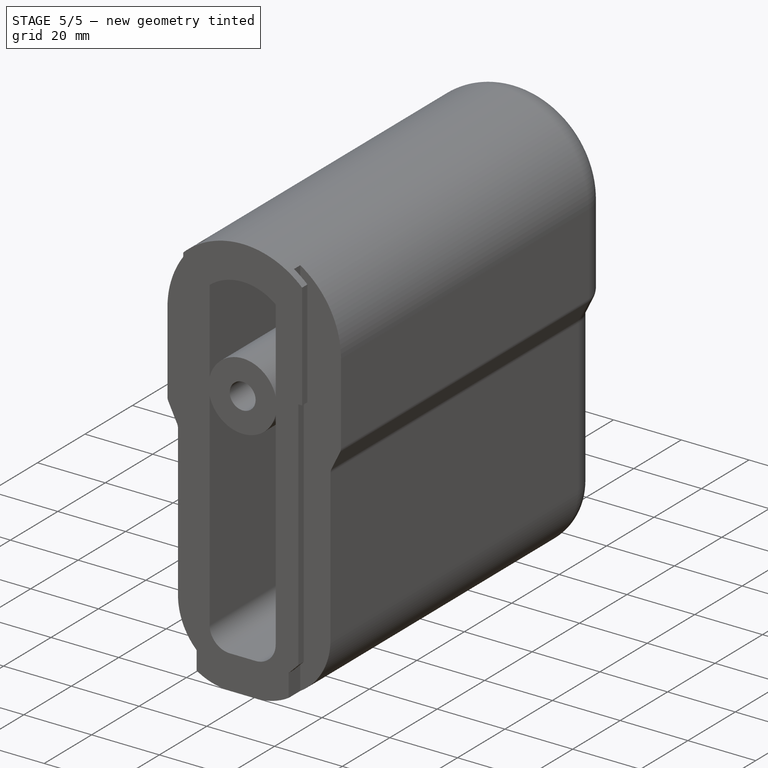
[diagram: stage 5 of 5 — iso view after this stage's code; geometry added in this stage tinted green]
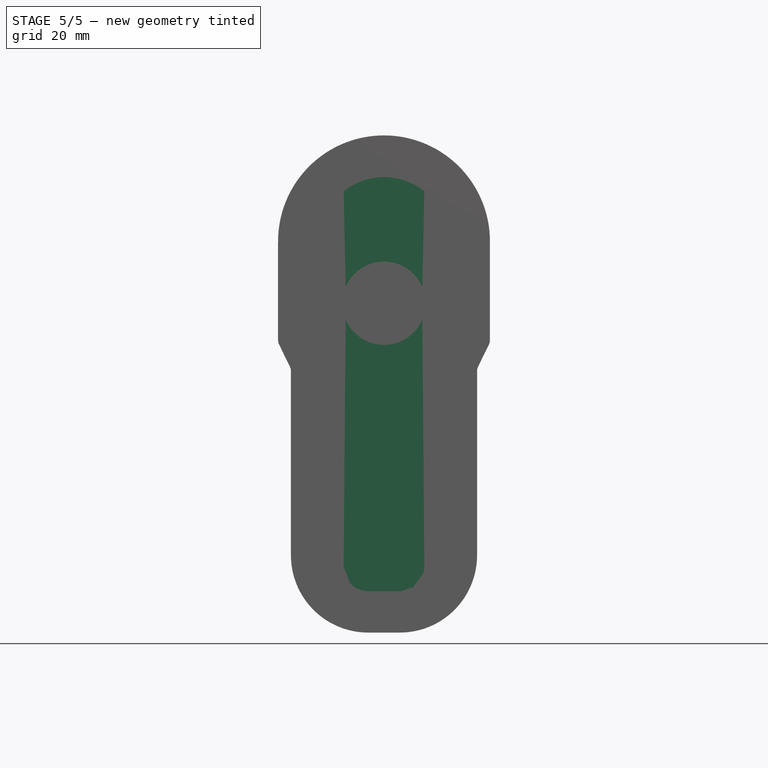
[diagram: stage 5 of 5 — front view after this stage's code; geometry added in this stage tinted green]
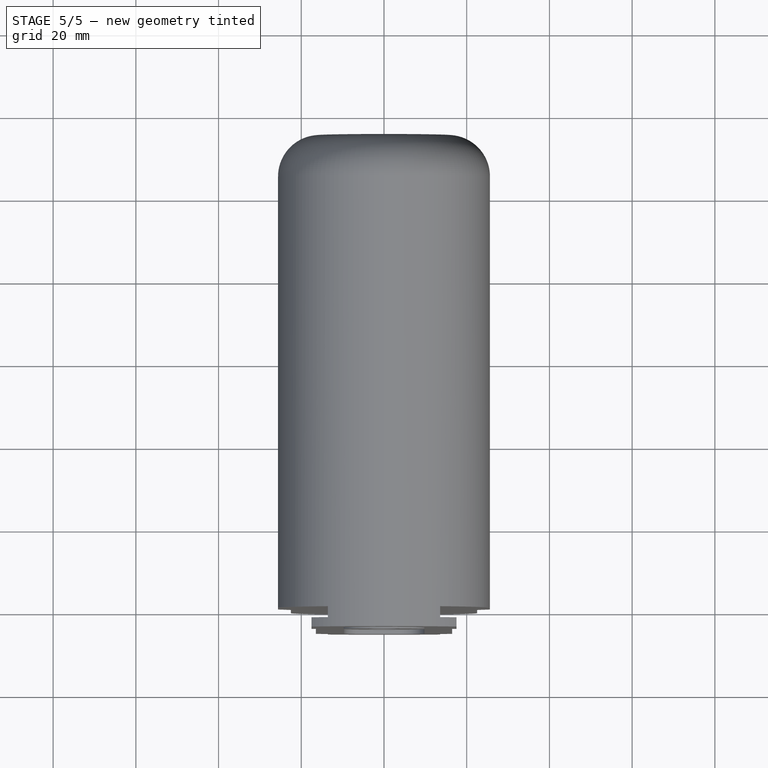
[diagram: stage 5 of 5 — top view after this stage's code; geometry added in this stage tinted green]
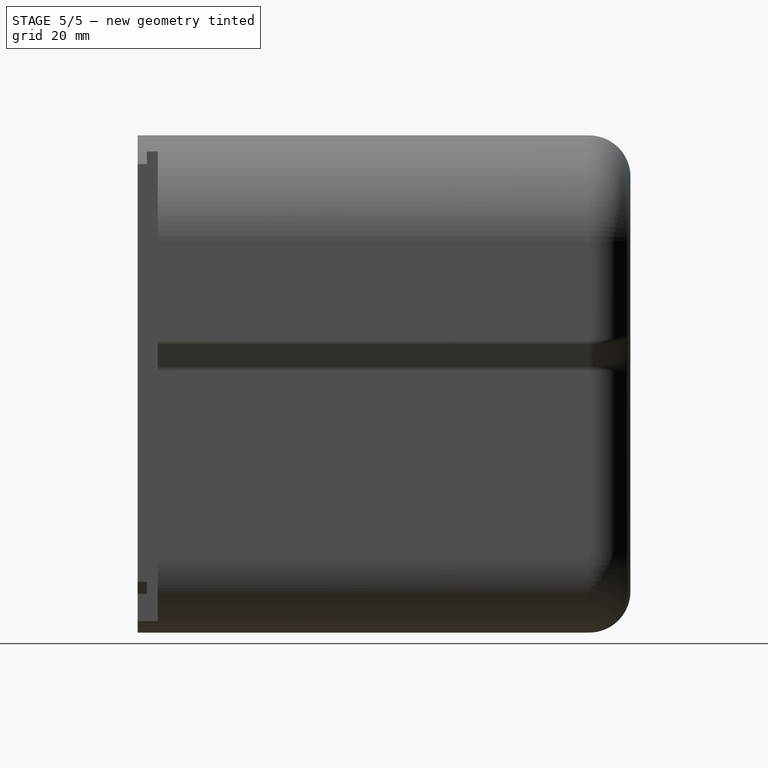
[diagram: stage 5 of 5 — right view after this stage's code; geometry added in this stage tinted green]
FEATURE [Spreadsheet::Sheet] Spreadsheet004  label="CentralPadSettings"
  cells = A1=PadThickness; B1(PadThickness)==<<PadBodyPad>>.Length; A2=LockingButtonHoleDepth; B2(LockingButtonHoleDepth)==<<P90Measurements>>.PadWidestWidthOuterShoulderDistanceFromReferencePoint + <<TelescopingBarSettings>>.BarThickness + <<TelescopingBarSettings>>.LockingPinThickness * 3 + SpringMaxHeight; A3=SpringMaxHeight; B3(SpringMaxHeight)==20mm
FEATURE [Sketcher::SketchObject] Sketch022  label="BCGHoleSketch"
  AttachmentOffset = pos=(0,0,4.8768) rot=(0,0,1;0rad)
  FullyConstrained = true
  MapMode = 5
  Placement = pos=(0,-4.8768,-1.1e-15) rot=(1,0,0;1.5708rad)
  Support = -> [XZ_Plane]
  expr: Constraints[1] = <<P90Measurements>>.PadBCGHoleFromReferencePoint + <<P90Measurements>>.PadBCGHoleDiameter / 2
  expr: Constraints[2] = <<P90Measurements>>.PadBCGHoleDiameter + <<ProjectSettings>>.LooseTolerance * 2
  expr: .AttachmentOffset.Base.z = <<P90Measurements>>.DovetailHeight
  sketch-geometry (1):
    g0: Circle CenterX=0 CenterY=79.6417 CenterZ=0 NormalX=0 NormalY=0 NormalZ=1 AngleXU=0 Radius=3.8179
  constraints (3):
    c: PointOnObject(g0,g-2)
    c: DistanceY(g-1,g0) = 79.6417
    c: Diameter(g0) = 7.6358
FEATURE [PartDesign::Pocket] Pocket010  label="BCGHolePocket"
  BaseFeature = -> Pocket001
  Length = 9.525
  Length2 = 100
  Placement = pos=(0,0,0) rot=(1,0,0;1.5708rad)
  Profile = -> Sketch022
  Refine = true
  Type = 0
  expr: Length = <<P90Measurements>>.PadBCGHoleDepth
FEATURE [Spreadsheet::Sheet] Spreadsheet002  label="TelescopingBarSettings"
  cells = A1=BarOffsetFromCenter; A2=LengthFromButtToChargingHandleShelf; B2(LengthFromButtToChargingHandleShelf)==310mm; A3=BarLength; B3(BarLength)==270mm; A4=BarThickness; B4(BarThickness)==5mm; A5=CrosspinThickness; B5(CrosspinThickness)==BarThickness; A6=BarHeight; B6(BarHeight)==<<P90Measurements>>.SpaceForTelescopingBar - <<ProjectSettings>>.LooseTolerance * 2; A7=LockingPinThickness; B7(LockingPinThickness)==5mm; A8=BarNumberOfKnotches; B8(BarNumberOfKnotches)=6
FEATURE [PartDesign::Fillet] Fillet
  Base = -> Pocket010 [Face5]
  BaseFeature = -> Pocket010
  Placement = pos=(0,0,0) rot=(1,0,0;1.5708rad)
  Radius = 10
  SupportTransform = false
FEATURE [Sketcher::SketchObject] Sketch023
  FullyConstrained = false
  MapMode = 5
  Placement = pos=(0,-4.8768,0) rot=(1,0,0;1.5708rad)
  Support = -> [Fillet]
  expr: Constraints[22] = <<P90Measurements>>.PadBottomWidth
  expr: Constraints[27] = <<ProjectSettings>>.WallThickness
  expr: Constraints[24] = <<P90Measurements>>.PadBCGHoleFromReferencePoint + <<P90Measurements>>.PadBCGHoleDiameter / 2
  expr: Constraints[26] = <<P90Measurements>>.PadBCGHoleDiameter + <<ProjectSettings>>.LooseTolerance * 2 + <<ProjectSettings>>.WallThickness * 2.5
  expr: Constraints[28] = <<PadBevelsCutSketch>>.Constraints.TopRoundSectionCenterHeight
  sketch-geometry (10):
    g0: ArcOfCircle CenterX=-3.81 CenterY=15.9426 CenterZ=0 NormalX=0 NormalY=0 NormalZ=1 AngleXU=0 Radius=5.94257 StartAngle=3.14159 EndAngle=4.71239
    g1: ArcOfCircle CenterX=3.81 CenterY=15.9426 CenterZ=0 NormalX=0 NormalY=0 NormalZ=1 AngleXU=0 Radius=5.94257 StartAngle=4.71239 EndAngle=6.28319
    g2: LineSegment StartX=-3.81 StartY=10 StartZ=0 EndX=3.81 EndY=10 EndZ=0
    g3: LineSegment StartX=-9.75257 StartY=77.1417 StartZ=0 EndX=-9.75257 EndY=15.9426 EndZ=0
    g4: LineSegment StartX=9.75257 StartY=15.9426 StartZ=0 EndX=9.75257 EndY=77.1417 EndZ=0
    g5: ArcOfCircle CenterX=0 CenterY=94.6023 CenterZ=0 NormalX=0 NormalY=0 NormalZ=1 AngleXU=0 Radius=15.5319 StartAngle=0.891936 EndAngle=2.24966
    g6: LineSegment StartX=-9.75257 StartY=106.691 StartZ=0 EndX=-9.75257 EndY=82.1417 EndZ=0
    g7: LineSegment StartX=9.75257 StartY=82.1417 StartZ=0 EndX=9.75257 EndY=106.691 EndZ=0
    g8: ArcOfCircle CenterX=0 CenterY=79.6417 CenterZ=0 NormalX=0 NormalY=0 NormalZ=1 AngleXU=0 Radius=10.0679 StartAngle=0.250939 EndAngle=2.89065
    g9: ArcOfCircle CenterX=0 CenterY=79.6417 CenterZ=0 NormalX=0 NormalY=0 NormalZ=1 AngleXU=0 Radius=10.0679 StartAngle=3.39253 EndAngle=6.03225
  constraints (29):
    c: Horizontal(g2)
    c: Tangent(g2,g0) = -1.5708
    c: Tangent(g4,g1) = -1.5708
    c: Tangent(g2,g1) = -1.5708
    c: Tangent(g3,g0) = -1.5708
    c: Vertical(g4)
    c: Vertical(g3)
    c: Equal(g1,g0)
    c: Coincident(g7,g5)
    c: Vertical(g7)
    c: Vertical(g6)
    c: Coincident(g5,g6)
    c: PointOnObject(g5,g-2)
    c: Vertical(g3,g6)
    c: PointOnObject(g8,g-2)
    c: Coincident(g8,g6)
    c: Coincident(g8,g7)
    c: Coincident(g9,g3)
    c: Coincident(g9,g4)
    c: Coincident(g8,g9)
    c: Vertical(g4,g7)
    c: Horizontal(g5,g5)
    c: DistanceX(g2,g2) = 7.62
    c: DistanceY(g-1,g1) = 10
    c: DistanceY(g-1,g8) = 79.6417
    c: Equal(g9,g8)
    c: Diameter(g9) = 20.1358
    c: DistanceY(g3,g6) = 5
    c: DistanceY(g-1,g5) = 94.6023
FEATURE [PartDesign::Pocket] Pocket011
  BaseFeature = -> Fillet
  Length = 83.9
  Length2 = 100
  Placement = pos=(0,0,0) rot=(1,0,0;1.5708rad)
  Profile = -> Sketch023
  Type = 0
  expr: Length = <<PadBodyPad>>.Length - <<ProjectSettings>>.WallThickness
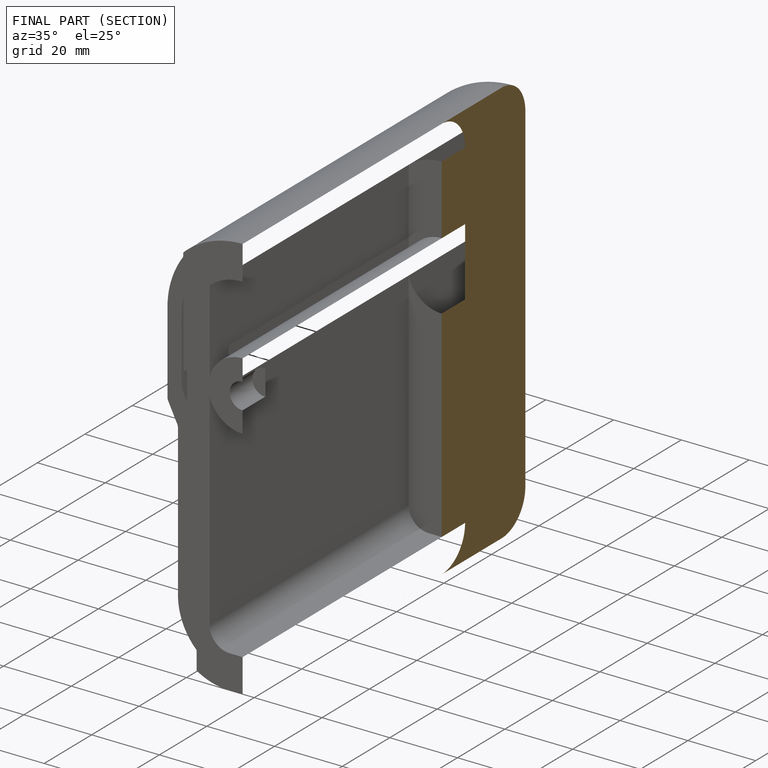
[diagram: finished part — half-section view (interior)]
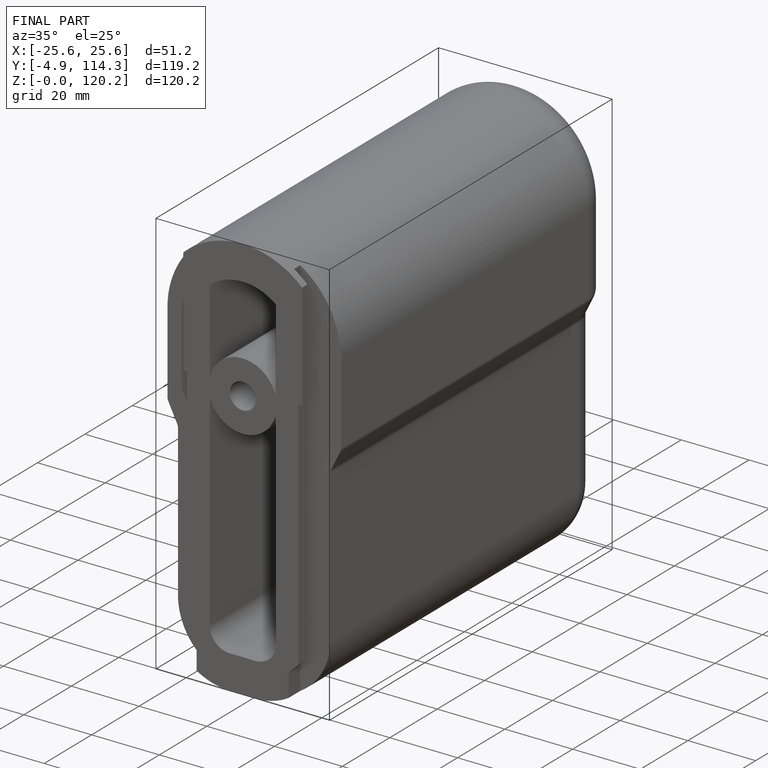
[diagram: finished part — iso view with bounding-box wireframe]
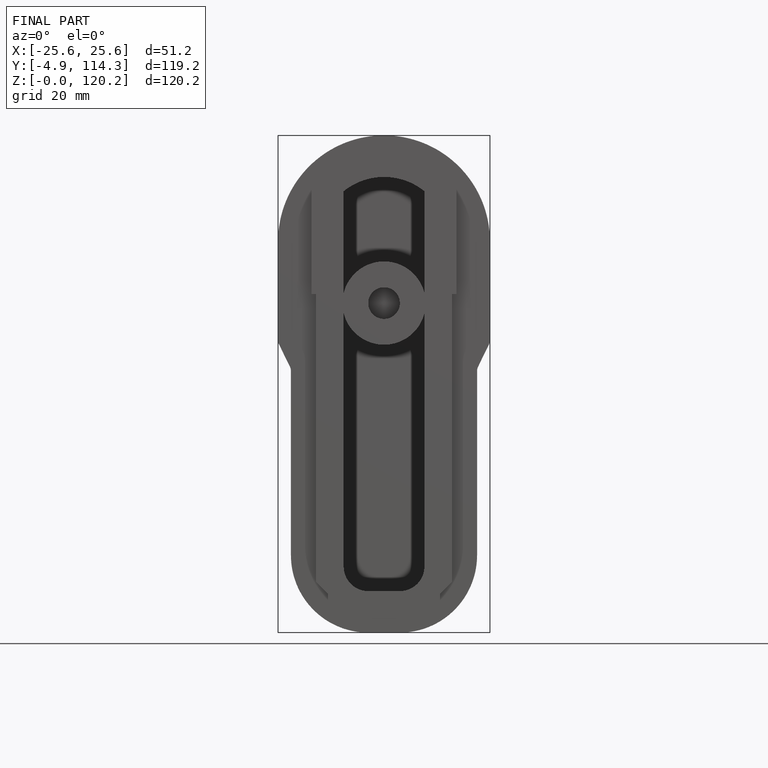
[diagram: finished part — front view with bounding-box wireframe]
